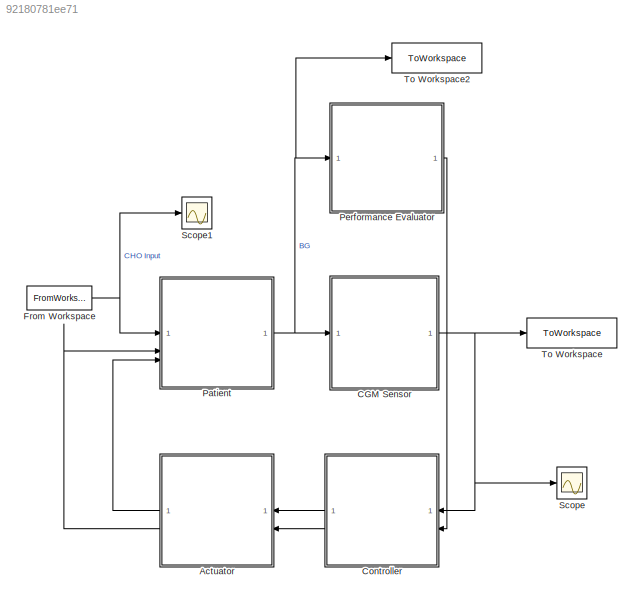
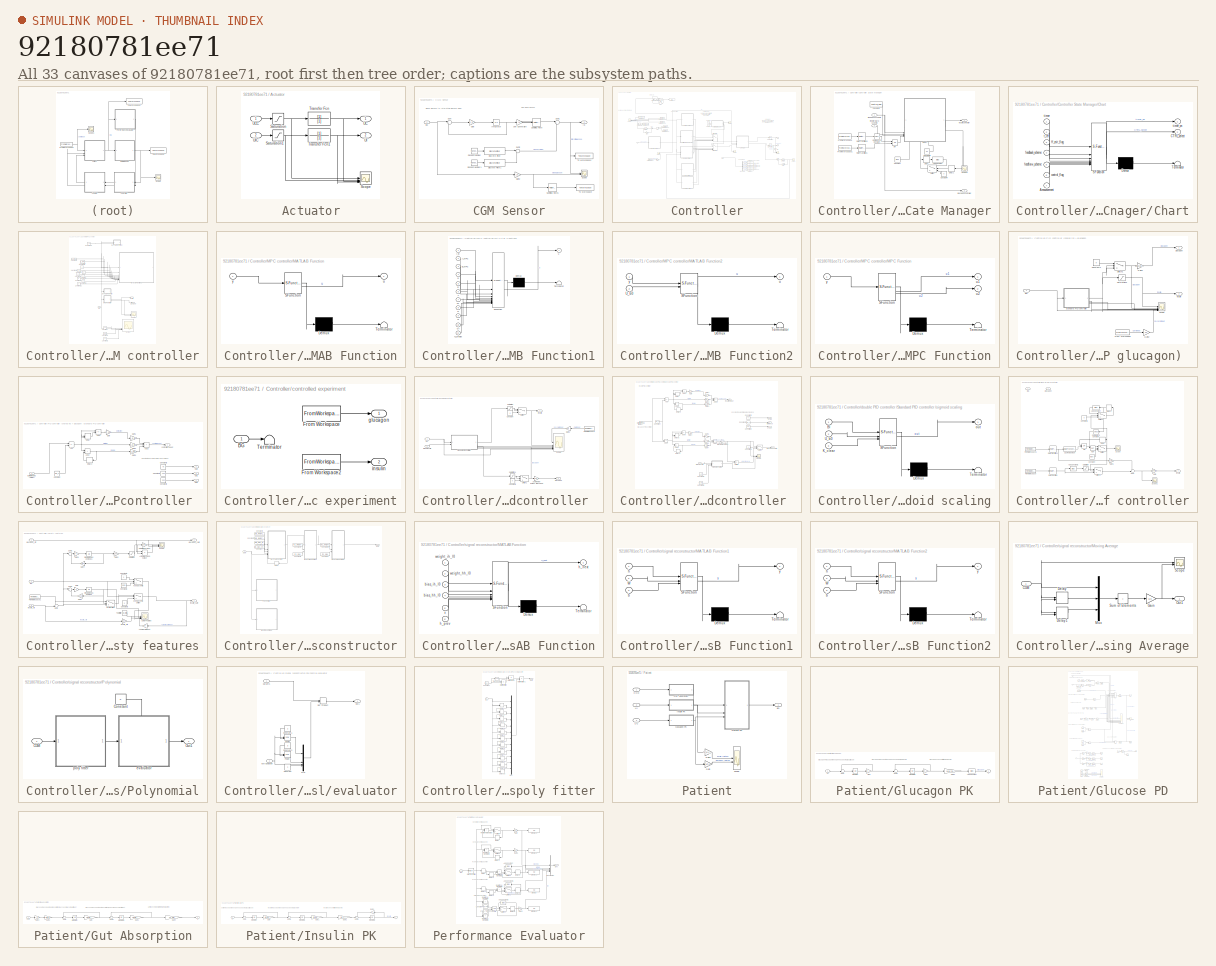
[diagram: thumbnail index - all 33 canvases of the model, root first then tree order]
MODEL slx_92180781ee71
KIND model
CONFIG AbsTol = auto
CONFIG EnableMultiTasking = off
CONFIG FixedStep = auto
CONFIG MaxStep = 1e-2
CONFIG MinStep = auto
CONFIG RelTol = 1e-3
CONFIG SampleTimeConstraint = Unconstrained
CONFIG SolverName = VariableStepAuto
CONFIG StartTime = 0.0
CONFIG StopTime = t_sim
BLOCK [SubSystem] Actuator
BLOCK [Saturate] Actuator/Saturation
  LowerLimit = 0
  UpperLimit = inf
BLOCK [Saturate] Actuator/Saturation1
  LowerLimit = 0
  UpperLimit = 60000
BLOCK [Scope] Actuator/Scope
  Floating = off
  NumInputPorts = 4
  ScopeSpecificationString = Simulink.scopes.TimeScopeBlockCfg('CurrentConfiguration', extmgr.ConfigurationSet(extmgr.Configuration('Core','General UI',true),extmgr.Configuration('Core','Source UI',true),extmgr.Configuration('Sources','WiredSimulink',true,'DataLoggingVariableName','ScopeData1'),extmgr.Configuration('Visuals','Time Domain',true,'SerializedDisplays',{struct('MinYLimReal','-2089.91313','MaxYLimReal','18809.21816...<+1504ch>
BLOCK [TransferFcn] Actuator/Transfer Fcn
  Denominator = [1]
BLOCK [TransferFcn] Actuator/Transfer Fcn1
  Denominator = [1]
BLOCK [Outport] Actuator/UC
BLOCK [Inport] Actuator/UCC
BLOCK [Outport] Actuator/UI
  Port = 2
BLOCK [Inport] Actuator/UIC
  Port = 2
BLOCK [SubSystem] CGM Sensor
BLOCK [Inport] CGM Sensor/BG
BLOCK [DiscreteFilter] CGM Sensor/Discrete Filter
  Denominator = [1 -1.23 0.3995]
  InputPortMap = u0
BLOCK [DiscreteFilter] CGM Sensor/Discrete Filter1
  Denominator = [1 -1.013 0.2135]
  InputPortMap = u0
BLOCK [Gain] CGM Sensor/Gain
  Gain = k_bi
BLOCK [Gain] CGM Sensor/Gain2
  Gain = 18
BLOCK [Outport] CGM Sensor/IG
BLOCK [Integrator] CGM Sensor/Integrator
  InitialCondition = BG_0/18
BLOCK [RandomNumber] CGM Sensor/Random Number
  SampleTime = T_CGM
  Seed = randi(1e5)
  Variance = 11.3
BLOCK [RandomNumber] CGM Sensor/Random Number1
  SampleTime = T_CGM
  Seed = randi(1e5)
  Variance = 14.45
BLOCK [RateTransition] CGM Sensor/Sampling Rate
  InitialCondition = BG_0
  OutPortSampleTime = T_CGM
BLOCK [RateTransition] CGM Sensor/Sampling Rate1
  InitialCondition = BG_0
  OutPortSampleTime = T_CGM
BLOCK [Scope] CGM Sensor/Scope
  Floating = off
  NumInputPorts = 2
  ScopeSpecificationString = Simulink.scopes.TimeScopeBlockCfg('CurrentConfiguration', extmgr.ConfigurationSet(extmgr.Configuration('Core','General UI',true),extmgr.Configuration('Core','Source UI',true),extmgr.Configuration('Sources','WiredSimulink',true,'DataLoggingVariableName','ScopeData4'),extmgr.Configuration('Visuals','Time Domain',true,'SerializedDisplays',{struct('MinYLimReal','40.04914','MaxYLimReal','276.19061','YL...<+1443ch>
BLOCK [Sum] CGM Sensor/Sum
  Inputs = |+-
BLOCK [Sum] CGM Sensor/Sum1
  Inputs = |++
BLOCK [Sum] CGM Sensor/Sum2
  Inputs = |++
BLOCK [ToWorkspace] CGM Sensor/To Workspace
  FixptAsFi = on
  MaxDataPoints = inf
  SampleTime = -1
  SaveFormat = Timeseries
  VariableName = real_bg
BLOCK [ToWorkspace] CGM Sensor/To Workspace1
  FixptAsFi = on
  MaxDataPoints = inf
  SampleTime = -1
  SaveFormat = Timeseries
  VariableName = CGM
BLOCK [Gain] CGM Sensor/Unit Conversion
  Gain = 18
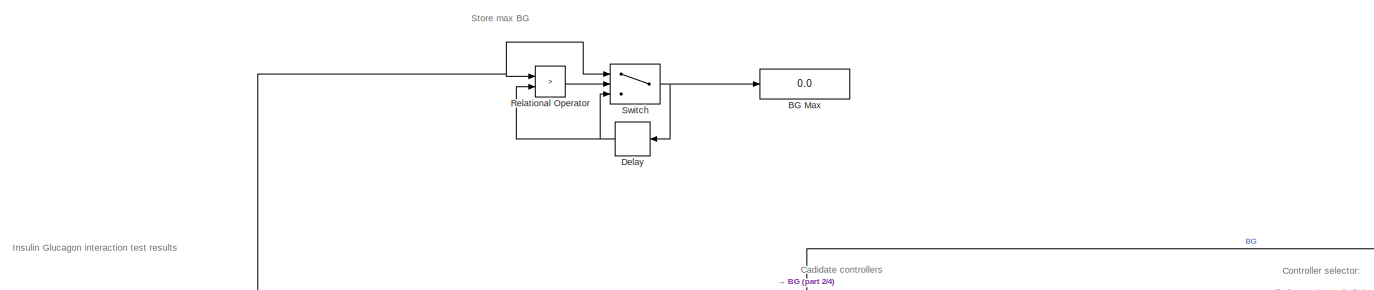
[diagram: Controller - part 1/4, top left region]
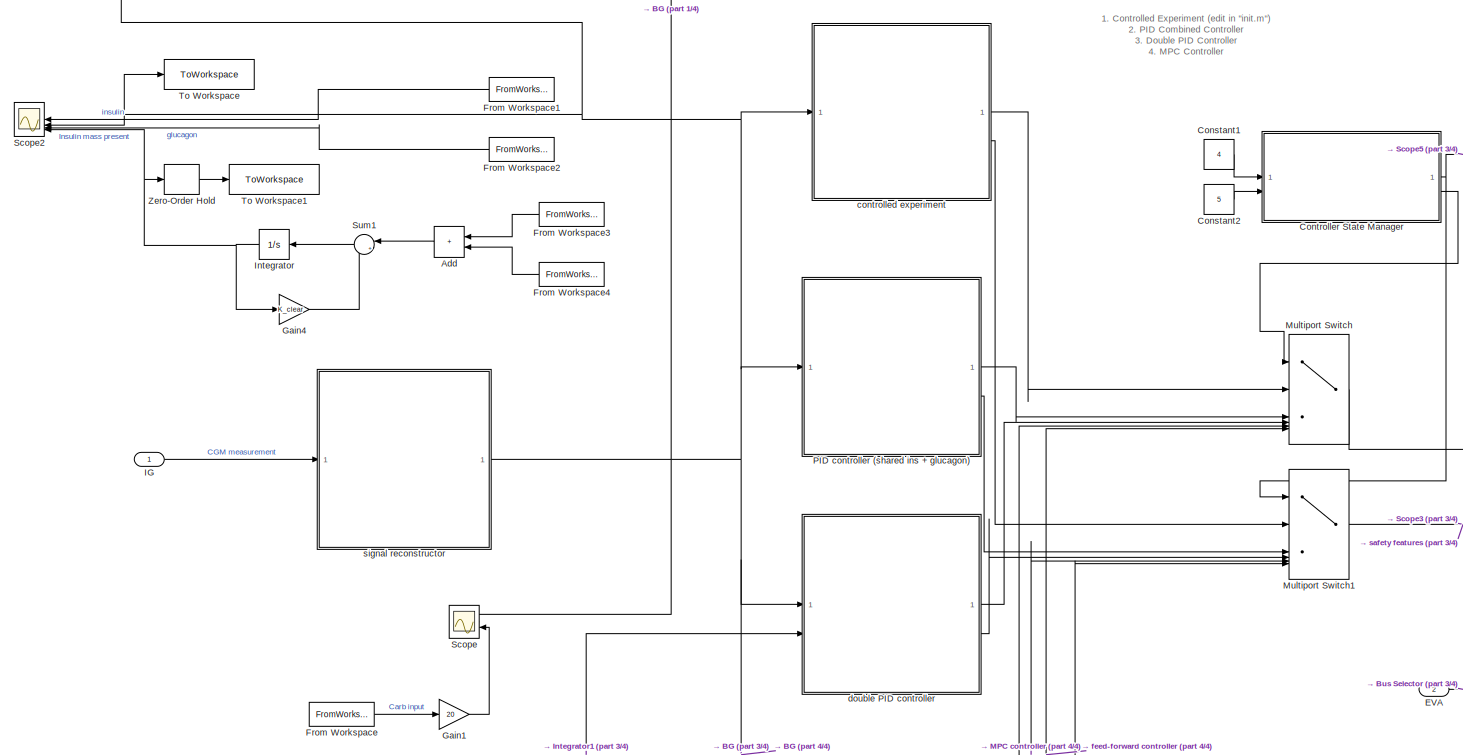
[diagram: Controller - part 2/4, middle left region]
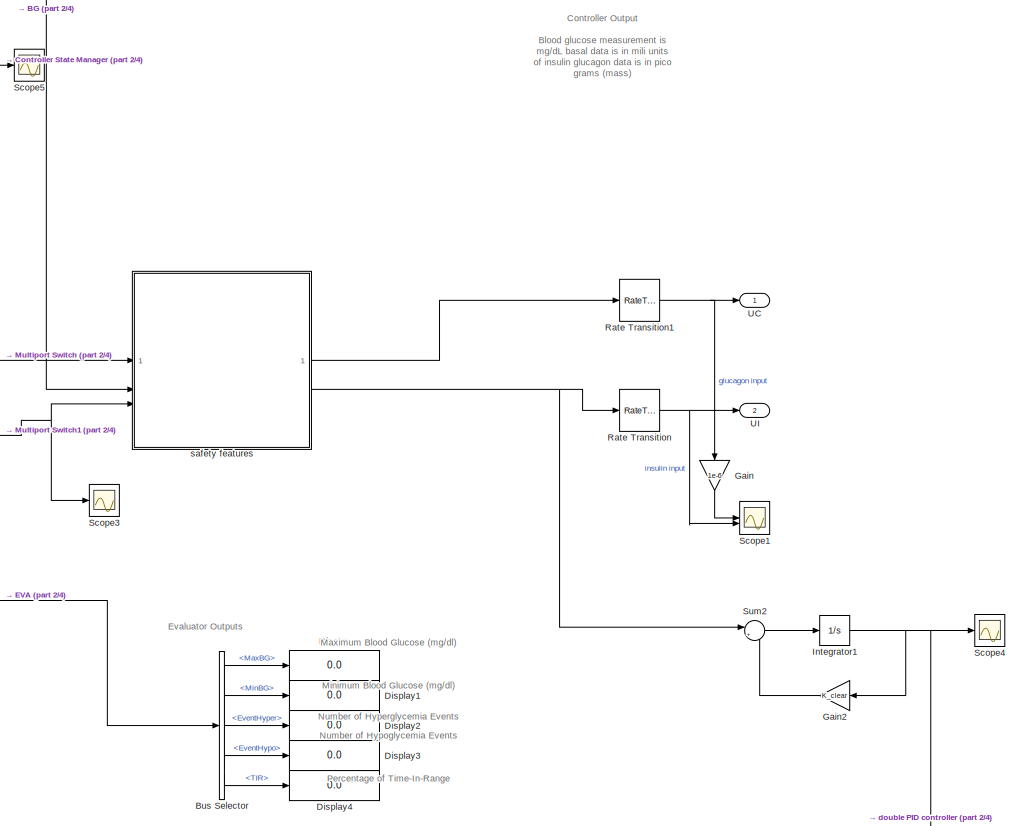
[diagram: Controller - part 3/4, middle right region]
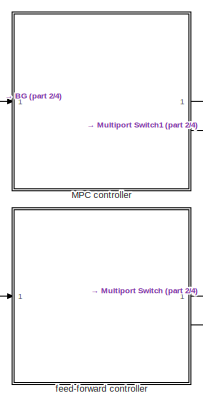
[diagram: Controller - part 4/4, bottom center region]
BLOCK [SubSystem] Controller
BLOCK [Sum] Controller/Add
  IconShape = rectangular
BLOCK [Display] Controller/BG Max 
  Decimation = 1
BLOCK [BusSelector] Controller/Bus Selector
  OutputSignals = MaxBG,MinBG,EventHyper,EventHypo,TIR
BLOCK [Constant] Controller/Constant1
  Value = 4
BLOCK [Constant] Controller/Constant2
  Value = 5
BLOCK [SubSystem] Controller/Controller State Manager
BLOCK [Bias] Controller/Controller State Manager/Add Constant
  Bias = T_CTRL
  SaturateOnIntegerOverflow = off
BLOCK [SubSystem] Controller/Controller State Manager/Chart
  ErrorFcn = Stateflow.Translate.translate
  PermitHierarchicalResolution = ExplicitOnly
  PortSchema = {"entries":[{"content":{"sides":[{"content":{"connectorIds":["In6","In4","In5","In7"]},"type":"ConnectorPlacement.EquallySpacedRectSide","uuid":"e6899742-d930-4cdd-9e73-f4511c9292a8"},{"content":{"connectorIds":["Out2"],"side":"RIGHT"},"type":"ConnectorPlacement.EquallySpacedRectSide","uuid":"ec367191-0ded-4e49-940d-e1c38365304e"},{"content":{"side":"TOP"},"type":"ConnectorPlacement.EquallySpacedR...<+408ch>
  SFBlockType = Chart
  TreatAsAtomicUnit = on
BLOCK [Demux] Controller/Controller State Manager/Chart/ Demux 
  Outputs = 1
BLOCK [S-Function] Controller/Controller State Manager/Chart/ SFunction 
  EnableBusSupport = on
  FunctionName = sf_sfun
  PortCounts = [7 3]
  SFcnIsStateOwnerBlock = off
  SFunctionDeploymentMode = off
  Tag = Stateflow S-Function 5
BLOCK [Terminator] Controller/Controller State Manager/Chart/ Terminator 
BLOCK [Inport] Controller/Controller State Manager/Chart/Announcement
  Port = 7
BLOCK [Outport] Controller/Controller State Manager/Chart/CTRL_select
  Port = 2
BLOCK [Inport] Controller/Controller State Manager/Chart/control_flag
  Port = 6
BLOCK [Inport] Controller/Controller State Manager/Chart/feedback_scheme
  Port = 4
BLOCK [Inport] Controller/Controller State Manager/Chart/feedforw_scheme
  Port = 5
BLOCK [Inport] Controller/Controller State Manager/Chart/ff_exit_flag
  Port = 3
BLOCK [Inport] Controller/Controller State Manager/Chart/t_ref
  Port = 2
BLOCK [Inport] Controller/Controller State Manager/Chart/timer
BLOCK [Outport] Controller/Controller State Manager/Chart/timer_on
BLOCK [Reference] Controller/Controller State Manager/Compare To Constant  REF=simulink/Logic and Bit
Operations/Compare
To Constant
  SourceBlock = simulink/Logic and Bit\nOperations/Compare\nTo Constant
  SourceType = Compare To Constant
BLOCK [Constant] Controller/Controller State Manager/Constant
  Value = false
BLOCK [Constant] Controller/Controller State Manager/Constant1
  Value = control_flag
BLOCK [Constant] Controller/Controller State Manager/Constant4
  Value = 0
BLOCK [Constant] Controller/Controller State Manager/Constant5
  Value = 90
BLOCK [Delay] Controller/Controller State Manager/Delay
  DelayLength = 1
  InputPortMap = u0
BLOCK [Delay] Controller/Controller State Manager/Delay1
  DelayLength = 1
  InputPortMap = u0
BLOCK [FromWorkspace] Controller/Controller State Manager/From Workspace
  VariableName = Announcements
BLOCK [FromWorkspace] Controller/Controller State Manager/From Workspace1
  VariableName = meal_prep
BLOCK [Logic] Controller/Controller State Manager/OR
  AllPortsSameDT = off
  IconShape = distinctive
  Operator = OR
  OutDataTypeStr = boolean
BLOCK [RateTransition] Controller/Controller State Manager/Rate Transition1
  OutPortSampleTime = T_CTRL
BLOCK [RateTransition] Controller/Controller State Manager/Rate Transition3
  OutPortSampleTime = T_CTRL
BLOCK [Scope] Controller/Controller State Manager/Scope3
  Floating = off
  NumInputPorts = 1
  ScopeSpecificationString = Simulink.scopes.TimeScopeBlockCfg('CurrentConfiguration', extmgr.ConfigurationSet(extmgr.Configuration('Core','General UI',true),extmgr.Configuration('Core','Source UI',true),extmgr.Configuration('Sources','WiredSimulink',true,'DataLoggingVariableName','ScopeData4'),extmgr.Configuration('Visuals','Time Domain',true,'SerializedDisplays',{struct('MinYLimReal','-0.125','MaxYLimReal','1.125','YLabelRe...<+1391ch>
BLOCK [Switch] Controller/Controller State Manager/Switch
  Criteria = u2 > Threshold
  InputSameDT = off
  SaturateOnIntegerOverflow = off
BLOCK [Inport] Controller/Controller State Manager/feedback scheme
BLOCK [Inport] Controller/Controller State Manager/feedforward scheme
  Port = 2
BLOCK [Outport] Controller/Controller State Manager/glucagon controller
  Port = 2
BLOCK [Outport] Controller/Controller State Manager/insulin controller
BLOCK [Delay] Controller/Delay
  DelayLength = 1
  InputPortMap = u0
BLOCK [Display] Controller/Display
  Decimation = 1
BLOCK [Display] Controller/Display1
  Decimation = 1
BLOCK [Display] Controller/Display2
  Decimation = 1
BLOCK [Display] Controller/Display3
  Decimation = 1
BLOCK [Display] Controller/Display4
  Decimation = 1
BLOCK [Inport] Controller/EVA
  Port = 2
BLOCK [FromWorkspace] Controller/From Workspace
  VariableName = CHO_data
BLOCK [FromWorkspace] Controller/From Workspace1
  NameLocation = top
  VariableName = bolus_data
BLOCK [FromWorkspace] Controller/From Workspace2
  NameLocation = top
  VariableName = glucagon_data
BLOCK [FromWorkspace] Controller/From Workspace3
  VariableName = bolus_data
BLOCK [FromWorkspace] Controller/From Workspace4
  VariableName = basal_data
BLOCK [Gain] Controller/Gain
  Gain = 1e-6
  NameLocation = left
BLOCK [Gain] Controller/Gain1
  Gain = 20
BLOCK [Gain] Controller/Gain2
  Gain = K_clear
BLOCK [Gain] Controller/Gain4
  Gain = K_clear
BLOCK [Inport] Controller/IG
BLOCK [Integrator] Controller/Integrator
  InitialCondition = U_b0/K_clear
BLOCK [Integrator] Controller/Integrator1
  InitialCondition = U_b0/K_clear
BLOCK [SubSystem] Controller/MPC controller
BLOCK [Inport] Controller/MPC controller/BG
BLOCK [Constant] Controller/MPC controller/Constant
  Value = 100
BLOCK [Constant] Controller/MPC controller/Constant1
  Value = 180
BLOCK [Constant] Controller/MPC controller/Constant10
  Commented = on
  Value = ur
BLOCK [Constant] Controller/MPC controller/Constant11
  Commented = on
  Value = Gr
BLOCK [Constant] Controller/MPC controller/Constant12
  Commented = on
  Value = N
BLOCK [Constant] Controller/MPC controller/Constant13
  Commented = on
  Value = U_b0
BLOCK [Constant] Controller/MPC controller/Constant2
  Value = 70
BLOCK [Constant] Controller/MPC controller/Constant3
  Commented = on
  Value = A_MPC
BLOCK [Constant] Controller/MPC controller/Constant4
  Commented = on
  Value = B_MPC
BLOCK [Constant] Controller/MPC controller/Constant5
  Commented = on
  Value = Q
BLOCK [Constant] Controller/MPC controller/Constant6
  Commented = on
  Value = R
BLOCK [Constant] Controller/MPC controller/Constant7
  Commented = on
  Value = c
BLOCK [Constant] Controller/MPC controller/Constant8
  Commented = on
  Value = x0
BLOCK [Constant] Controller/MPC controller/Constant9
  Commented = on
  Value = xr
BLOCK [SubSystem] Controller/MPC controller/MATLAB Function
  Commented = on
  ErrorFcn = Stateflow.Translate.translate
  PermitHierarchicalResolution = ExplicitOnly
  SFBlockType = MATLAB Function
  TreatAsAtomicUnit = on
BLOCK [Demux] Controller/MPC controller/MATLAB Function/ Demux 
  Outputs = 1
BLOCK [S-Function] Controller/MPC controller/MATLAB Function/ SFunction 
  EnableBusSupport = on
  FunctionName = sf_sfun
  PortCounts = [1 2]
  SFcnIsStateOwnerBlock = off
  SFunctionDeploymentMode = off
  Tag = Stateflow S-Function 7
BLOCK [Terminator] Controller/MPC controller/MATLAB Function/ Terminator 
BLOCK [Outport] Controller/MPC controller/MATLAB Function/u
BLOCK [Inport] Controller/MPC controller/MATLAB Function/y
BLOCK [SubSystem] Controller/MPC controller/MATLAB Function1
  Commented = on
  ErrorFcn = Stateflow.Translate.translate
  PermitHierarchicalResolution = ExplicitOnly
  SFBlockType = MATLAB Function
  TreatAsAtomicUnit = on
BLOCK [Demux] Controller/MPC controller/MATLAB Function1/ Demux 
  Outputs = 1
BLOCK [S-Function] Controller/MPC controller/MATLAB Function1/ SFunction 
  EnableBusSupport = on
  FunctionName = sf_sfun
  PortCounts = [11 2]
  SFcnIsStateOwnerBlock = off
  SFunctionDeploymentMode = off
  Tag = Stateflow S-Function 8
BLOCK [Terminator] Controller/MPC controller/MATLAB Function1/ Terminator 
BLOCK [Inport] Controller/MPC controller/MATLAB Function1/A_MPC
  Port = 2
BLOCK [Inport] Controller/MPC controller/MATLAB Function1/B_MPC
  Port = 3
BLOCK [Inport] Controller/MPC controller/MATLAB Function1/Gr
  Port = 10
BLOCK [Inport] Controller/MPC controller/MATLAB Function1/N_predict
  Port = 11
BLOCK [Inport] Controller/MPC controller/MATLAB Function1/Q
  Port = 4
BLOCK [Inport] Controller/MPC controller/MATLAB Function1/R
  Port = 5
BLOCK [Inport] Controller/MPC controller/MATLAB Function1/c
  Port = 6
BLOCK [Outport] Controller/MPC controller/MATLAB Function1/u
BLOCK [Inport] Controller/MPC controller/MATLAB Function1/ur
  Port = 9
BLOCK [Inport] Controller/MPC controller/MATLAB Function1/x0
  Port = 7
BLOCK [Inport] Controller/MPC controller/MATLAB Function1/xr
  Port = 8
BLOCK [Inport] Controller/MPC controller/MATLAB Function1/y_in
BLOCK [SubSystem] Controller/MPC controller/MATLAB Function2
  Commented = on
  ErrorFcn = Stateflow.Translate.translate
  PermitHierarchicalResolution = ExplicitOnly
  SFBlockType = MATLAB Function
  TreatAsAtomicUnit = on
BLOCK [Demux] Controller/MPC controller/MATLAB Function2/ Demux 
  Outputs = 1
BLOCK [S-Function] Controller/MPC controller/MATLAB Function2/ SFunction 
  EnableBusSupport = on
  FunctionName = sf_sfun
  PortCounts = [2 2]
  SFcnIsStateOwnerBlock = off
  SFunctionDeploymentMode = off
  Tag = Stateflow S-Function 9
BLOCK [Terminator] Controller/MPC controller/MATLAB Function2/ Terminator 
BLOCK [Inport] Controller/MPC controller/MATLAB Function2/U_b0
  Port = 2
BLOCK [Outport] Controller/MPC controller/MATLAB Function2/u
BLOCK [Inport] Controller/MPC controller/MATLAB Function2/y
BLOCK [SubSystem] Controller/MPC controller/MPC Function
  ErrorFcn = Stateflow.Translate.translate
  PermitHierarchicalResolution = ExplicitOnly
  SFBlockType = MATLAB Function
  TreatAsAtomicUnit = on
BLOCK [Demux] Controller/MPC controller/MPC Function/ Demux 
  Outputs = 1
BLOCK [S-Function] Controller/MPC controller/MPC Function/ SFunction 
  EnableBusSupport = on
  FunctionName = sf_sfun
  PortCounts = [1 3]
  SFcnIsStateOwnerBlock = off
  SFunctionDeploymentMode = off
  Tag = Stateflow S-Function 2
BLOCK [Terminator] Controller/MPC controller/MPC Function/ Terminator 
BLOCK [Outport] Controller/MPC controller/MPC Function/u1
BLOCK [Outport] Controller/MPC controller/MPC Function/u2
  Port = 2
BLOCK [Inport] Controller/MPC controller/MPC Function/y
BLOCK [Scope] Controller/MPC controller/Scope
  Floating = off
  NumInputPorts = 6
  ScopeSpecificationString = Simulink.scopes.TimeScopeBlockCfg('CurrentConfiguration', extmgr.ConfigurationSet(extmgr.Configuration('Core','General UI',true),extmgr.Configuration('Core','Source UI',true),extmgr.Configuration('Sources','WiredSimulink',true),extmgr.Configuration('Visuals','Time Domain',true,'SerializedDisplays',{struct('MinYLimReal','-32.16515','MaxYLimReal','289.48636','YLabelReal','','MinYLimMag','0.00000','M...<+1459ch>
BLOCK [Scope] Controller/MPC controller/Scope1
  Floating = off
  NumInputPorts = 2
  ScopeSpecificationString = Simulink.scopes.TimeScopeBlockCfg('CurrentConfiguration', extmgr.ConfigurationSet(extmgr.Configuration('Core','General UI',true),extmgr.Configuration('Core','Source UI',true),extmgr.Configuration('Sources','WiredSimulink',true),extmgr.Configuration('Visuals','Time Domain',true,'SerializedDisplays',{struct('MinYLimReal','-1.00000','MaxYLimReal','1.00000','YLabelReal','','MinYLimMag','0.00000','MaxY...<+1408ch>
BLOCK [Outport] Controller/MPC controller/glucagon
  NameLocation = top
BLOCK [Outport] Controller/MPC controller/insulin
  Port = 2
BLOCK [MultiPortSwitch] Controller/Multiport Switch
  InputSameDT = off
  Inputs = 5
  SaturateOnIntegerOverflow = off
BLOCK [MultiPortSwitch] Controller/Multiport Switch1
  InputSameDT = off
  Inputs = 5
  SaturateOnIntegerOverflow = off
BLOCK [SubSystem] Controller/PID controller (shared ins + glucagon) 
BLOCK [Inport] Controller/PID controller (shared ins + glucagon) /BG
BLOCK [Constant] Controller/PID controller (shared ins + glucagon) /Constant2
  Value = 0
BLOCK [FromWorkspace] Controller/PID controller (shared ins + glucagon) /From Workspace
  VariableName = CHO_data
BLOCK [Gain] Controller/PID controller (shared ins + glucagon) /Gain1
  Gain = -glucagon_dose
BLOCK [Gain] Controller/PID controller (shared ins + glucagon) /Gain2
  Gain = 20
BLOCK [Saturate] Controller/PID controller (shared ins + glucagon) /Saturation1
  LowerLimit = 0
  UpperLimit = inf
BLOCK [Scope] Controller/PID controller (shared ins + glucagon) /Scope
  Floating = off
  NumInputPorts = 9
  ScopeSpecificationString = Simulink.scopes.TimeScopeBlockCfg('CurrentConfiguration', extmgr.ConfigurationSet(extmgr.Configuration('Core','General UI',true),extmgr.Configuration('Core','Source UI',true),extmgr.Configuration('Sources','WiredSimulink',true,'DataLoggingVariableName','ScopeData1'),extmgr.Configuration('Visuals','Time Domain',true,'SerializedDisplays',{struct('MinYLimReal','-100','MaxYLimReal','400','YLabelReal',...<+1821ch>
BLOCK [SubSystem] Controller/PID controller (shared ins + glucagon) /Standard PID controller 
BLOCK [Sum] Controller/PID controller (shared ins + glucagon) /Standard PID controller /Add
  IconShape = rectangular
  Inputs = +-
BLOCK [Sum] Controller/PID controller (shared ins + glucagon) /Standard PID controller /Add1
  IconShape = rectangular
  Inputs = +-
BLOCK [Sum] Controller/PID controller (shared ins + glucagon) /Standard PID controller /Add2
  IconShape = rectangular
BLOCK [Sum] Controller/PID controller (shared ins + glucagon) /Standard PID controller /Add3
  IconShape = rectangular
  Inputs = +++
BLOCK [Constant] Controller/PID controller (shared ins + glucagon) /Standard PID controller /Constant
  Value = BG_0
BLOCK [Constant] Controller/PID controller (shared ins + glucagon) /Standard PID controller /Constant1
  Value = 100
BLOCK [Constant] Controller/PID controller (shared ins + glucagon) /Standard PID controller /Constant2
  Value = 250
BLOCK [Constant] Controller/PID controller (shared ins + glucagon) /Standard PID controller /Constant3
  Value = 70
BLOCK [Delay] Controller/PID controller (shared ins + glucagon) /Standard PID controller /Delay
  DelayLength = 1
  InitialConditionSource = Input port
  InputPortMap = u0,p4
BLOCK [Delay] Controller/PID controller (shared ins + glucagon) /Standard PID controller /Delay1
  DelayLength = 1
  InputPortMap = u0
  NameLocation = top
BLOCK [Inport] Controller/PID controller (shared ins + glucagon) /Standard PID controller /Estimated BG (mg//dL)
BLOCK [Gain] Controller/PID controller (shared ins + glucagon) /Standard PID controller /Gain
  Gain = 1/T_CGM
BLOCK [Gain] Controller/PID controller (shared ins + glucagon) /Standard PID controller /Gain1
  Gain = K_d_ins
BLOCK [Gain] Controller/PID controller (shared ins + glucagon) /Standard PID controller /Gain2
  Gain = K_p_ins
BLOCK [Gain] Controller/PID controller (shared ins + glucagon) /Standard PID controller /Gain3
  Gain = K_i_ins
BLOCK [Outport] Controller/PID controller (shared ins + glucagon) /Standard PID controller /Out1
  Port = 3
BLOCK [Outport] Controller/PID controller (shared ins + glucagon) /Standard PID controller /Out2
  Port = 2
BLOCK [Outport] Controller/PID controller (shared ins + glucagon) /Standard PID controller /Out4
  Port = 4
BLOCK [Outport] Controller/PID controller (shared ins + glucagon) /Standard PID controller /controller ouput
BLOCK [Switch] Controller/PID controller (shared ins + glucagon) /Switch1
  Criteria = u2 > Threshold
  InputSameDT = off
  SaturateOnIntegerOverflow = off
  Threshold = -16
BLOCK [Outport] Controller/PID controller (shared ins + glucagon) /glucagon
BLOCK [Outport] Controller/PID controller (shared ins + glucagon) /insulin
  Port = 2
BLOCK [RateTransition] Controller/Rate Transition
  OutPortSampleTime = T_CTRL
BLOCK [RateTransition] Controller/Rate Transition1
  OutPortSampleTime = T_CTRL
BLOCK [RelationalOperator] Controller/Relational Operator
  InputSameDT = off
  Operator = >
  OutDataTypeStr = boolean
  RndMeth = Simplest
BLOCK [Scope] Controller/Scope
  Floating = off
  NumInputPorts = 2
  ScopeSpecificationString = Simulink.scopes.TimeScopeBlockCfg('CurrentConfiguration', extmgr.ConfigurationSet(extmgr.Configuration('Core','General UI',true),extmgr.Configuration('Core','Source UI',true),extmgr.Configuration('Sources','WiredSimulink',true,'DataLoggingVariableName','ScopeData1'),extmgr.Configuration('Visuals','Time Domain',true,'SerializedDisplays',{struct('MinYLimReal','-61.39498','MaxYLimReal','552.55479','Y...<+1476ch>
BLOCK [Scope] Controller/Scope1
  Floating = off
  NumInputPorts = 2
  ScopeSpecificationString = Simulink.scopes.TimeScopeBlockCfg('CurrentConfiguration', extmgr.ConfigurationSet(extmgr.Configuration('Core','General UI',true),extmgr.Configuration('Core','Source UI',true),extmgr.Configuration('Sources','WiredSimulink',true,'DataLoggingVariableName','ScopeData1'),extmgr.Configuration('Visuals','Time Domain',true,'SerializedDisplays',{struct('MinYLimReal','-26.35412','MaxYLimReal','795.49729','Y...<+1474ch>
BLOCK [Scope] Controller/Scope2
  Floating = off
  NumInputPorts = 4
  ScopeSpecificationString = Simulink.scopes.TimeScopeBlockCfg('CurrentConfiguration', extmgr.ConfigurationSet(extmgr.Configuration('Core','General UI',true),extmgr.Configuration('Core','Source UI',true),extmgr.Configuration('Sources','WiredSimulink',true,'DataLoggingVariableName','ScopeData1'),extmgr.Configuration('Visuals','Time Domain',true,'SerializedDisplays',{struct('MinYLimReal','-184.25874','MaxYLimReal','1658.32864',...<+1948ch>
BLOCK [Scope] Controller/Scope3
  Floating = off
  NumInputPorts = 1
  ScopeSpecificationString = Simulink.scopes.TimeScopeBlockCfg('CurrentConfiguration', extmgr.ConfigurationSet(extmgr.Configuration('Core','General UI',true),extmgr.Configuration('Core','Source UI',true),extmgr.Configuration('Sources','WiredSimulink',true,'DataLoggingVariableName','ScopeData1'),extmgr.Configuration('Visuals','Time Domain',true,'SerializedDisplays',{struct('MinYLimReal','-148.98081','MaxYLimReal','1982.26161',...<+1506ch>
BLOCK [Scope] Controller/Scope4
  Floating = off
  NumInputPorts = 1
  ScopeSpecificationString = Simulink.scopes.TimeScopeBlockCfg('CurrentConfiguration', extmgr.ConfigurationSet(extmgr.Configuration('Core','General UI',true),extmgr.Configuration('Core','Source UI',true),extmgr.Configuration('Sources','WiredSimulink',true,'DataLoggingVariableName','ScopeData2'),extmgr.Configuration('Visuals','Time Domain',true,'SerializedDisplays',{struct('MinYLimReal','-384.80585','MaxYLimReal','8054.32602',...<+1420ch>
BLOCK [Scope] Controller/Scope5
  Floating = off
  NumInputPorts = 1
  ScopeSpecificationString = Simulink.scopes.TimeScopeBlockCfg('CurrentConfiguration', extmgr.ConfigurationSet(extmgr.Configuration('Core','General UI',true),extmgr.Configuration('Core','Source UI',true),extmgr.Configuration('Sources','WiredSimulink',true,'DataLoggingVariableName','ScopeData2'),extmgr.Configuration('Visuals','Time Domain',true,'SerializedDisplays',{struct('MinYLimReal','0.5','MaxYLimReal','5.5','YLabelReal','...<+1413ch>
BLOCK [Sum] Controller/Sum1
  Inputs = |+-
BLOCK [Sum] Controller/Sum2
  Inputs = |+-
BLOCK [Switch] Controller/Switch
  Criteria = u2 ~= 0
  InputSameDT = off
  SaturateOnIntegerOverflow = off
BLOCK [ToWorkspace] Controller/To Workspace
  FixptAsFi = on
  MaxDataPoints = inf
  SampleTime = -1
  VariableName = BG_data
BLOCK [ToWorkspace] Controller/To Workspace1
  FixptAsFi = on
  MaxDataPoints = inf
  SampleTime = -1
  VariableName = total_insulin
BLOCK [Outport] Controller/UC
BLOCK [Outport] Controller/UI
  Port = 2
BLOCK [ZeroOrderHold] Controller/Zero-Order Hold
  SampleTime = T_CGM
BLOCK [SubSystem] Controller/controlled experiment
BLOCK [Inport] Controller/controlled experiment/BG
BLOCK [FromWorkspace] Controller/controlled experiment/From Workspace
  VariableName = glucagon_data
BLOCK [FromWorkspace] Controller/controlled experiment/From Workspace2
  VariableName = bolus_data
BLOCK [Terminator] Controller/controlled experiment/Terminator
BLOCK [Outport] Controller/controlled experiment/glucagon
BLOCK [Outport] Controller/controlled experiment/insulin
  Port = 2
BLOCK [SubSystem] Controller/double PID controller 
BLOCK [Inport] Controller/double PID controller /BG
BLOCK [Inport] Controller/double PID controller /Blood Insulin
  Port = 2
BLOCK [Constant] Controller/double PID controller /Constant
  Value = 0
BLOCK [Constant] Controller/double PID controller /Constant1
  Value = 0
BLOCK [FromWorkspace] Controller/double PID controller /From Workspace
  VariableName = CHO_data
BLOCK [Gain] Controller/double PID controller /Gain2
  Gain = 20
BLOCK [Saturate] Controller/double PID controller /Saturation
  LowerLimit = 0
  UpperLimit = inf
BLOCK [Saturate] Controller/double PID controller /Saturation1
  LowerLimit = 0
  UpperLimit = inf
BLOCK [Scope] Controller/double PID controller /Scope
  Floating = off
  NumInputPorts = 7
  ScopeSpecificationString = Simulink.scopes.TimeScopeBlockCfg('CurrentConfiguration', extmgr.ConfigurationSet(extmgr.Configuration('Core','General UI',true),extmgr.Configuration('Core','Source UI',true),extmgr.Configuration('Sources','WiredSimulink',true,'DataLoggingVariableName','ScopeData1'),extmgr.Configuration('Visuals','Time Domain',true,'SerializedDisplays',{struct('MinYLimReal','-36.95895','MaxYLimReal','332.63059','Y...<+1757ch>
BLOCK [SubSystem] Controller/double PID controller /Standard PID controller 
BLOCK [Sum] Controller/double PID controller /Standard PID controller /Add
  IconShape = rectangular
  Inputs = +-
BLOCK [Sum] Controller/double PID controller /Standard PID controller /Add1
  IconShape = rectangular
  Inputs = +-
BLOCK [Sum] Controller/double PID controller /Standard PID controller /Add2
  IconShape = rectangular
BLOCK [Sum] Controller/double PID controller /Standard PID controller /Add3
  IconShape = rectangular
  Inputs = +++
BLOCK [Sum] Controller/double PID controller /Standard PID controller /Add4
  IconShape = rectangular
  Inputs = -+
BLOCK [Sum] Controller/double PID controller /Standard PID controller /Add5
  IconShape = rectangular
  Inputs = +-
BLOCK [Sum] Controller/double PID controller /Standard PID controller /Add6
  IconShape = rectangular
BLOCK [Sum] Controller/double PID controller /Standard PID controller /Add7
  IconShape = rectangular
  Inputs = +++
BLOCK [Inport] Controller/double PID controller /Standard PID controller /Blood Insulin
  Port = 2
BLOCK [Constant] Controller/double PID controller /Standard PID controller /Constant
  Value = BG_0
BLOCK [Constant] Controller/double PID controller /Standard PID controller /Constant1
  Value = BG_0
BLOCK [Constant] Controller/double PID controller /Standard PID controller /Constant2
  Value = 250
BLOCK [Constant] Controller/double PID controller /Standard PID controller /Constant3
  Value = 70
BLOCK [Constant] Controller/double PID controller /Standard PID controller /Constant4
  Value = -1
BLOCK [Constant] Controller/double PID controller /Standard PID controller /Constant5
  Value = K_clear
BLOCK [Constant] Controller/double PID controller /Standard PID controller /Constant6
  Value = U_b0
BLOCK [Delay] Controller/double PID controller /Standard PID controller /Delay
  DelayLength = 1
  InitialConditionSource = Input port
  InputPortMap = u0,p4
BLOCK [Delay] Controller/double PID controller /Standard PID controller /Delay1
  DelayLength = 1
  InputPortMap = u0
  NameLocation = top
BLOCK [Delay] Controller/double PID controller /Standard PID controller /Delay2
  DelayLength = 1
  InitialConditionSource = Input port
  InputPortMap = u0,p4
BLOCK [Delay] Controller/double PID controller /Standard PID controller /Delay3
  DelayLength = 1
  InputPortMap = u0
  NameLocation = top
BLOCK [Inport] Controller/double PID controller /Standard PID controller /Estimated BG (mg//dL)
BLOCK [Gain] Controller/double PID controller /Standard PID controller /Gain
  Gain = 1/T_CGM
BLOCK [Gain] Controller/double PID controller /Standard PID controller /Gain1
  Gain = K_d_ins
BLOCK [Gain] Controller/double PID controller /Standard PID controller /Gain2
  Gain = K_p_ins
BLOCK [Gain] Controller/double PID controller /Standard PID controller /Gain3
  Gain = K_i_ins
BLOCK [Gain] Controller/double PID controller /Standard PID controller /Gain4
  Gain = 1/T_CGM
BLOCK [Gain] Controller/double PID controller /Standard PID controller /Gain5
  Gain = K_d_glu
BLOCK [Gain] Controller/double PID controller /Standard PID controller /Gain6
  Gain = K_p_glu
BLOCK [Gain] Controller/double PID controller /Standard PID controller /Gain7
  Gain = K_i_glu
BLOCK [Scope] Controller/double PID controller /Standard PID controller /Scope
  Floating = off
  NumInputPorts = 3
  ScopeSpecificationString = Simulink.scopes.TimeScopeBlockCfg('CurrentConfiguration', extmgr.ConfigurationSet(extmgr.Configuration('Core','General UI',true),extmgr.Configuration('Core','Source UI',true),extmgr.Configuration('Sources','WiredSimulink',true,'DataLoggingVariableName','ScopeData1'),extmgr.Configuration('Visuals','Time Domain',true,'SerializedDisplays',{struct('MinYLimReal','-2.38376','MaxYLimReal','3.33998','YLab...<+1574ch>
BLOCK [Switch] Controller/double PID controller /Standard PID controller /Switch
  Criteria = u2 > Threshold
  InputSameDT = off
  SaturateOnIntegerOverflow = off
BLOCK [Outport] Controller/double PID controller /Standard PID controller /glucagon output
  Port = 5
BLOCK [Outport] Controller/double PID controller /Standard PID controller /hyper
  Port = 4
BLOCK [Outport] Controller/double PID controller /Standard PID controller /hypo
  Port = 2
BLOCK [Outport] Controller/double PID controller /Standard PID controller /insulin ouput
BLOCK [Product] Controller/double PID controller /Standard PID controller /multiply
  Inputs = **
BLOCK [Outport] Controller/double PID controller /Standard PID controller /reference
  Port = 3
BLOCK [SubSystem] Controller/double PID controller /Standard PID controller /sigmoid scaling
  ErrorFcn = Stateflow.Translate.translate
  PermitHierarchicalResolution = ExplicitOnly
  SFBlockType = MATLAB Function
  TreatAsAtomicUnit = on
BLOCK [Demux] Controller/double PID controller /Standard PID controller /sigmoid scaling/ Demux 
  Outputs = 1
BLOCK [S-Function] Controller/double PID controller /Standard PID controller /sigmoid scaling/ SFunction 
  EnableBusSupport = on
  FunctionName = sf_sfun
  PortCounts = [3 2]
  SFcnIsStateOwnerBlock = off
  SFunctionDeploymentMode = off
  Tag = Stateflow S-Function 6
BLOCK [Terminator] Controller/double PID controller /Standard PID controller /sigmoid scaling/ Terminator 
BLOCK [Inport] Controller/double PID controller /Standard PID controller /sigmoid scaling/BI
BLOCK [Inport] Controller/double PID controller /Standard PID controller /sigmoid scaling/K_clear
  Port = 3
BLOCK [Inport] Controller/double PID controller /Standard PID controller /sigmoid scaling/U_b0
  Port = 2
BLOCK [Outport] Controller/double PID controller /Standard PID controller /sigmoid scaling/out
  VectorParamsAs1DForOutWhenUnconnected = off
BLOCK [Gain] Controller/double PID controller /Standard PID controller /so that -ve output injects glucagon
  Gain = -1
  NameLocation = top
BLOCK [Switch] Controller/double PID controller /Switch
  Criteria = u2 > Threshold
  InputSameDT = off
  SaturateOnIntegerOverflow = off
BLOCK [Switch] Controller/double PID controller /Switch1
  Criteria = u2 > Threshold
  InputSameDT = off
  SaturateOnIntegerOverflow = off
BLOCK [Gain] Controller/double PID controller /due to lower potency of glucagon
  Gain = 1e5
BLOCK [Outport] Controller/double PID controller /glucagon
BLOCK [Outport] Controller/double PID controller /insulin
  Port = 2
BLOCK [SubSystem] Controller/feed-forward controller
BLOCK [Bias] Controller/feed-forward controller/Add Constant
  Bias = T_CTRL
  SaturateOnIntegerOverflow = off
BLOCK [Bias] Controller/feed-forward controller/Add Constant1
  Bias = -m_prep
  SaturateOnIntegerOverflow = off
BLOCK [Inport] Controller/feed-forward controller/BG
BLOCK [DataTypeConversion] Controller/feed-forward controller/Cast To Boolean
  OutDataTypeStr = boolean
  RndMeth = Floor
  SaturateOnIntegerOverflow = off
BLOCK [Reference] Controller/feed-forward controller/Compare To Constant  REF=simulink/Logic and Bit
Operations/Compare
To Constant
  SourceBlock = simulink/Logic and Bit\nOperations/Compare\nTo Constant
  SourceType = Compare To Constant
BLOCK [Constant] Controller/feed-forward controller/Constant
  Value = false
BLOCK [Constant] Controller/feed-forward controller/Constant1
  Value = 0
BLOCK [Delay] Controller/feed-forward controller/Delay
  DelayLength = 1
  InputPortMap = u0
BLOCK [Delay] Controller/feed-forward controller/Delay1
  DelayLength = 1
  InputPortMap = u0
BLOCK [FromWorkspace] Controller/feed-forward controller/From Workspace
  VariableName = Announcements
BLOCK [FromWorkspace] Controller/feed-forward controller/From Workspace1
  VariableName = meal_prep
BLOCK [Gain] Controller/feed-forward controller/Gain
  Gain = 1000/ICR/T_CTRL
BLOCK [Gain] Controller/feed-forward controller/Gain1
  Gain = m_prep
BLOCK [Logic] Controller/feed-forward controller/NOT
  AllPortsSameDT = off
  IconShape = distinctive
  Operator = NOT
  OutDataTypeStr = boolean
BLOCK [Logic] Controller/feed-forward controller/OR
  AllPortsSameDT = off
  IconShape = distinctive
  Operator = OR
  OutDataTypeStr = boolean
BLOCK [RateTransition] Controller/feed-forward controller/Rate Transition
  OutPortSampleTime = T_CTRL
BLOCK [RateTransition] Controller/feed-forward controller/Rate Transition1
  OutPortSampleTime = T_CTRL
BLOCK [Saturate] Controller/feed-forward controller/Saturation
  LowerLimit = 0
  UpperLimit = 1e3
BLOCK [Scope] Controller/feed-forward controller/Scope
  Floating = off
  NumInputPorts = 1
  ScopeSpecificationString = Simulink.scopes.TimeScopeBlockCfg('CurrentConfiguration', extmgr.ConfigurationSet(extmgr.Configuration('Core','General UI',true),extmgr.Configuration('Core','Source UI',true),extmgr.Configuration('Sources','WiredSimulink',true,'DataLoggingVariableName','ScopeData1'),extmgr.Configuration('Visuals','Time Domain',true,'SerializedDisplays',{struct('MinYLimReal','-0.125','MaxYLimReal','1.125','YLabelRe...<+1353ch>
BLOCK [Scope] Controller/feed-forward controller/Scope1
  Floating = off
  NumInputPorts = 1
  ScopeSpecificationString = Simulink.scopes.TimeScopeBlockCfg('CurrentConfiguration', extmgr.ConfigurationSet(extmgr.Configuration('Core','General UI',true),extmgr.Configuration('Core','Source UI',true),extmgr.Configuration('Sources','WiredSimulink',true,'DataLoggingVariableName','ScopeData1'),extmgr.Configuration('Visuals','Time Domain',true,'SerializedDisplays',{struct('MinYLimReal','-1.56675','MaxYLimReal','60.1664','YLab...<+1406ch>
BLOCK [Sum] Controller/feed-forward controller/Sum
  Inputs = ++|
BLOCK [Switch] Controller/feed-forward controller/Switch
  Criteria = u2 > Threshold
  InputSameDT = off
  SaturateOnIntegerOverflow = off
BLOCK [Switch] Controller/feed-forward controller/Switch1
  Criteria = u2 > Threshold
  InputSameDT = off
  SaturateOnIntegerOverflow = off
BLOCK [Switch] Controller/feed-forward controller/Switch2
  Criteria = u2 > Threshold
  InputSameDT = off
  SaturateOnIntegerOverflow = off
BLOCK [Outport] Controller/feed-forward controller/glucagon
  NameLocation = top
BLOCK [Outport] Controller/feed-forward controller/insulin
  Port = 2
BLOCK [SubSystem] Controller/safety features
BLOCK [Gain] Controller/safety features/Actual Insulin Input
  Gain = 50
BLOCK [Product] Controller/safety features/Actual glucagon output
  Inputs = **
BLOCK [Inport] Controller/safety features/BG
  Port = 2
BLOCK [Constant] Controller/safety features/Constant1
  Value = 50*50
BLOCK [Constant] Controller/safety features/Constant2
  Value = 0
BLOCK [Constant] Controller/safety features/Constant3
  Value = 0
BLOCK [FromWorkspace] Controller/safety features/From Workspace1
  VariableName = basal_data
BLOCK [Gain] Controller/safety features/Gain
BLOCK [Gain] Controller/safety features/Gain1
  Gain = 0.005
BLOCK [Gain] Controller/safety features/Gain2
  Gain = 2e-4
BLOCK [Gain] Controller/safety features/Gain3
BLOCK [Gain] Controller/safety features/Gain4
  Gain = 1/60
BLOCK [Switch] Controller/safety features/Hypoglycemia
  Criteria = u2 > Threshold
  InputSameDT = off
  SaturateOnIntegerOverflow = off
  Threshold = 70
BLOCK [Switch] Controller/safety features/Hypoglycemic Switch
  Criteria = u2 > Threshold
  InputSameDT = off
  SaturateOnIntegerOverflow = off
  Threshold = 70
BLOCK [Switch] Controller/safety features/Insulin switch
  Criteria = u2 > Threshold
  InputSameDT = off
  SaturateOnIntegerOverflow = off
  Threshold = TDD_limit/3
BLOCK [Integrator] Controller/safety features/Integral of bolus and leak
BLOCK [Integrator] Controller/safety features/Integral of bolus and leak1
BLOCK [Scope] Controller/safety features/Safety Features
  Floating = off
  NumInputPorts = 5
  ScopeSpecificationString = Simulink.scopes.TimeScopeBlockCfg('CurrentConfiguration', extmgr.ConfigurationSet(extmgr.Configuration('Core','General UI',true),extmgr.Configuration('Core','Source UI',true),extmgr.Configuration('Sources','WiredSimulink',true,'DataLoggingVariableName','ScopeData1'),extmgr.Configuration('Visuals','Time Domain',true,'SerializedDisplays',{struct('MinYLimReal','-2241.13611','MaxYLimReal','20170.22497...<+1717ch>
BLOCK [Saturate] Controller/safety features/Saturation
  LowerLimit = 0
  UpperLimit = 1
BLOCK [Gain] Controller/safety features/Saturation (scaled)
  Gain = 1e8
BLOCK [Scope] Controller/safety features/Scope
  Floating = off
  NumInputPorts = 3
  ScopeSpecificationString = Simulink.scopes.TimeScopeBlockCfg('CurrentConfiguration', extmgr.ConfigurationSet(extmgr.Configuration('Core','General UI',true),extmgr.Configuration('Core','Source UI',true),extmgr.Configuration('Sources','WiredSimulink',true,'DataLoggingVariableName','ScopeData1'),extmgr.Configuration('Visuals','Time Domain',true,'SerializedDisplays',{struct('MinYLimReal','-78557830.67175','MaxYLimReal','7070204...<+1502ch>
BLOCK [Sum] Controller/safety features/Sum
  Inputs = ++|
BLOCK [Sum] Controller/safety features/Sum1
  Inputs = |+-
BLOCK [Sum] Controller/safety features/Sum2
  Inputs = |+-
BLOCK [Constant] Controller/safety features/TDD limit //3
  Value = TDD_limit/3
BLOCK [Inport] Controller/safety features/glucagon_ctrl
BLOCK [Outport] Controller/safety features/glucagon_safe
BLOCK [Inport] Controller/safety features/insulin_ctrl
  Port = 3
BLOCK [Gain] Controller/safety features/insulin_ctrl*
  Gain = 50
BLOCK [Outport] Controller/safety features/insulin_safe
  Port = 2
BLOCK [SubSystem] Controller/signal reconstructor
BLOCK [Outport] Controller/signal reconstructor/BGE
  PortDimensions = 1
BLOCK [Inport] Controller/signal reconstructor/CGM
  PortDimensions = 1
BLOCK [Constant] Controller/signal reconstructor/Constant
  Value = gru_bias_hh_l0
BLOCK [Constant] Controller/signal reconstructor/Constant1
  Value = gru_bias_ih_l0
BLOCK [Constant] Controller/signal reconstructor/Constant2
  Value = gru_weight_hh_l0
BLOCK [Constant] Controller/signal reconstructor/Constant3
  Value = gru_weight_ih_l0
BLOCK [Constant] Controller/signal reconstructor/Constant4
  Value = fc1_weight
BLOCK [Constant] Controller/signal reconstructor/Constant5
  Value = fc1_bias
BLOCK [Constant] Controller/signal reconstructor/Constant6
  Value = fc2_weight
BLOCK [Constant] Controller/signal reconstructor/Constant7
  Value = fc2_bias
BLOCK [Delay] Controller/signal reconstructor/Delay
  DelayLength = 1
  InitialCondition = zeros(length(gru_bias_hh_l0)/3, 1)
  InputPortMap = u0
BLOCK [SubSystem] Controller/signal reconstructor/MATLAB Function
  ErrorFcn = Stateflow.Translate.translate
  PermitHierarchicalResolution = ExplicitOnly
  SFBlockType = MATLAB Function
  TreatAsAtomicUnit = on
BLOCK [Demux] Controller/signal reconstructor/MATLAB Function/ Demux 
  Outputs = 1
BLOCK [S-Function] Controller/signal reconstructor/MATLAB Function/ SFunction 
  EnableBusSupport = on
  FunctionName = sf_sfun
  PortCounts = [6 2]
  SFcnIsStateOwnerBlock = off
  SFunctionDeploymentMode = off
  Tag = Stateflow S-Function 1
BLOCK [Terminator] Controller/signal reconstructor/MATLAB Function/ Terminator 
BLOCK [Inport] Controller/signal reconstructor/MATLAB Function/bias_hh_l0
  Port = 4
BLOCK [Inport] Controller/signal reconstructor/MATLAB Function/bias_ih_l0
  Port = 3
BLOCK [Outport] Controller/signal reconstructor/MATLAB Function/h_next
BLOCK [Inport] Controller/signal reconstructor/MATLAB Function/h_prev
  Port = 6
BLOCK [Inport] Controller/signal reconstructor/MATLAB Function/weight_hh_l0
  Port = 2
BLOCK [Inport] Controller/signal reconstructor/MATLAB Function/weight_ih_l0
BLOCK [Inport] Controller/signal reconstructor/MATLAB Function/x
  Port = 5
BLOCK [SubSystem] Controller/signal reconstructor/MATLAB Function1
  ErrorFcn = Stateflow.Translate.translate
  PermitHierarchicalResolution = ExplicitOnly
  SFBlockType = MATLAB Function
  TreatAsAtomicUnit = on
BLOCK [Demux] Controller/signal reconstructor/MATLAB Function1/ Demux 
  Outputs = 1
BLOCK [S-Function] Controller/signal reconstructor/MATLAB Function1/ SFunction 
  EnableBusSupport = on
  FunctionName = sf_sfun
  PortCounts = [3 2]
  SFcnIsStateOwnerBlock = off
  SFunctionDeploymentMode = off
  Tag = Stateflow S-Function 3
BLOCK [Terminator] Controller/signal reconstructor/MATLAB Function1/ Terminator 
BLOCK [Inport] Controller/signal reconstructor/MATLAB Function1/W
  Port = 2
BLOCK [Inport] Controller/signal reconstructor/MATLAB Function1/b
  Port = 3
BLOCK [Inport] Controller/signal reconstructor/MATLAB Function1/h
BLOCK [Outport] Controller/signal reconstructor/MATLAB Function1/y
BLOCK [SubSystem] Controller/signal reconstructor/MATLAB Function2
  ErrorFcn = Stateflow.Translate.translate
  PermitHierarchicalResolution = ExplicitOnly
  SFBlockType = MATLAB Function
  TreatAsAtomicUnit = on
BLOCK [Demux] Controller/signal reconstructor/MATLAB Function2/ Demux 
  Outputs = 1
BLOCK [S-Function] Controller/signal reconstructor/MATLAB Function2/ SFunction 
  EnableBusSupport = on
  FunctionName = sf_sfun
  PortCounts = [3 2]
  SFcnIsStateOwnerBlock = off
  SFunctionDeploymentMode = off
  Tag = Stateflow S-Function 4
BLOCK [Terminator] Controller/signal reconstructor/MATLAB Function2/ Terminator 
BLOCK [Inport] Controller/signal reconstructor/MATLAB Function2/W
  Port = 2
BLOCK [Inport] Controller/signal reconstructor/MATLAB Function2/b
  Port = 3
BLOCK [Inport] Controller/signal reconstructor/MATLAB Function2/h
BLOCK [Outport] Controller/signal reconstructor/MATLAB Function2/y
BLOCK [SubSystem] Controller/signal reconstructor/Moving Average
BLOCK [Inport] Controller/signal reconstructor/Moving Average/CGM
BLOCK [Delay] Controller/signal reconstructor/Moving Average/Delay
  DelayLength = 1
  InitialConditionSource = Input port
  InputPortMap = u0,p4
BLOCK [Delay] Controller/signal reconstructor/Moving Average/Delay1
  InitialConditionSource = Input port
  InputPortMap = u0,p4
BLOCK [Gain] Controller/signal reconstructor/Moving Average/Gain
  Gain = 1/3
BLOCK [Mux] Controller/signal reconstructor/Moving Average/Mux
  DisplayOption = bar
  Inputs = 3
BLOCK [Outport] Controller/signal reconstructor/Moving Average/Out1
BLOCK [Scope] Controller/signal reconstructor/Moving Average/Scope
  Floating = off
  NumInputPorts = 2
  ScopeSpecificationString = Simulink.scopes.TimeScopeBlockCfg('CurrentConfiguration', extmgr.ConfigurationSet(extmgr.Configuration('Core','General UI',true),extmgr.Configuration('Core','Source UI',true),extmgr.Configuration('Sources','WiredSimulink',true,'DataLoggingVariableName','ScopeData1'),extmgr.Configuration('Visuals','Time Domain',true,'SerializedDisplays',{struct('MinYLimReal','34.99399','MaxYLimReal','356.99428','YL...<+1415ch>
BLOCK [Sum] Controller/signal reconstructor/Moving Average/Sum of Elements
  IconShape = rectangular
  Inputs = +
BLOCK [SubSystem] Controller/signal reconstructor/Polynomial
BLOCK [Inport] Controller/signal reconstructor/Polynomial/CGM
BLOCK [Constant] Controller/signal reconstructor/Polynomial/Constant
  Value = 0
BLOCK [Outport] Controller/signal reconstructor/Polynomial/Out1
BLOCK [SubSystem] Controller/signal reconstructor/Polynomial/evaluator
  PortSchema = {"entries":[{"content":{"sides":[{"content":{"connectorIds":["In1"]},"type":"ConnectorPlacement.EquallySpacedRectSide","uuid":"35f34b66-bfab-428a-939d-8069c2283e72"},{"content":{"connectorIds":["Out1"],"side":"RIGHT"},"type":"ConnectorPlacement.EquallySpacedRectSide","uuid":"483b8a40-53bf-45e0-bac5-26b40d77782d"},{"content":{"connectorIds":["In2"],"side":"TOP"},"type":"ConnectorPlacement.EquallySp...<+245ch>
BLOCK [Constant] Controller/signal reconstructor/Polynomial/evaluator/Constant
BLOCK [Constant] Controller/signal reconstructor/Polynomial/evaluator/Constant1
  Value = 2
BLOCK [Constant] Controller/signal reconstructor/Polynomial/evaluator/Constant2
  Value = 3
BLOCK [DotProduct] Controller/signal reconstructor/Polynomial/evaluator/Dot Product
  OutDataTypeStr = Inherit: Inherit via internal rule
BLOCK [Mux] Controller/signal reconstructor/Polynomial/evaluator/Mux
  DisplayOption = bar
BLOCK [Outport] Controller/signal reconstructor/Polynomial/evaluator/Out1
BLOCK [Math] Controller/signal reconstructor/Polynomial/evaluator/Power
  Operator = pow
BLOCK [Math] Controller/signal reconstructor/Polynomial/evaluator/Power1
  Operator = pow
BLOCK [Inport] Controller/signal reconstructor/Polynomial/evaluator/extrapolation
  Port = 2
BLOCK [Inport] Controller/signal reconstructor/Polynomial/evaluator/params
BLOCK [SubSystem] Controller/signal reconstructor/Polynomial/poly fitter
BLOCK [Constant] Controller/signal reconstructor/Polynomial/poly fitter/Constant
  Value = [(0:-1:-11).^3;(0:-1:-11).^2; (0:-1:-11); ones(1,12)]'
BLOCK [Delay] Controller/signal reconstructor/Polynomial/poly fitter/Delay
  DelayLength = 1
  InitialConditionSource = Input port
  InputPortMap = u0,p4
BLOCK [Delay] Controller/signal reconstructor/Polynomial/poly fitter/Delay1
  DelayLength = 1
  InitialConditionSource = Input port
  InputPortMap = u0,p4
BLOCK [Delay] Controller/signal reconstructor/Polynomial/poly fitter/Delay10
  DelayLength = 1
  InitialConditionSource = Input port
  InputPortMap = u0,p4
BLOCK [Delay] Controller/signal reconstructor/Polynomial/poly fitter/Delay2
  DelayLength = 1
  InitialConditionSource = Input port
  InputPortMap = u0,p4
BLOCK [Delay] Controller/signal reconstructor/Polynomial/poly fitter/Delay3
  DelayLength = 1
  InitialConditionSource = Input port
  InputPortMap = u0,p4
BLOCK [Delay] Controller/signal reconstructor/Polynomial/poly fitter/Delay4
  DelayLength = 1
  InitialConditionSource = Input port
  InputPortMap = u0,p4
BLOCK [Delay] Controller/signal reconstructor/Polynomial/poly fitter/Delay5
  DelayLength = 1
  InitialConditionSource = Input port
  InputPortMap = u0,p4
BLOCK [Delay] Controller/signal reconstructor/Polynomial/poly fitter/Delay6
  DelayLength = 1
  InitialConditionSource = Input port
  InputPortMap = u0,p4
BLOCK [Delay] Controller/signal reconstructor/Polynomial/poly fitter/Delay7
  DelayLength = 1
  InitialConditionSource = Input port
  InputPortMap = u0,p4
BLOCK [Delay] Controller/signal reconstructor/Polynomial/poly fitter/Delay8
  DelayLength = 1
  InitialConditionSource = Input port
  InputPortMap = u0,p4
BLOCK [Delay] Controller/signal reconstructor/Polynomial/poly fitter/Delay9
  DelayLength = 1
  InitialConditionSource = Input port
  InputPortMap = u0,p4
BLOCK [Inport] Controller/signal reconstructor/Polynomial/poly fitter/In1
BLOCK [Product] Controller/signal reconstructor/Polynomial/poly fitter/Matrix Divide
  Inputs = /*
  Multiplication = Matrix(*)
BLOCK [Product] Controller/signal reconstructor/Polynomial/poly fitter/MatrixMultiply
  Multiplication = Matrix(*)
BLOCK [Product] Controller/signal reconstructor/Polynomial/poly fitter/MatrixMultiply1
  Multiplication = Matrix(*)
BLOCK [Mux] Controller/signal reconstructor/Polynomial/poly fitter/Mux
  DisplayOption = bar
  Inputs = 12
BLOCK [Outport] Controller/signal reconstructor/Polynomial/poly fitter/Out1
BLOCK [Math] Controller/signal reconstructor/Polynomial/poly fitter/Transpose
  Operator = transpose
BLOCK [FromWorkspace] From Workspace
  VariableName = CHO_data
BLOCK [SubSystem] Patient
BLOCK [Outport] Patient/BG
BLOCK [Inport] Patient/CHO
BLOCK [Gain] Patient/Gain
  Gain = 1/C_b
BLOCK [Gain] Patient/Gain1
  Gain = (k_e*V_I*W)/U_b0
BLOCK [SubSystem] Patient/Glucagon PK
BLOCK [Bias] Patient/Glucagon PK/Add Constant
  Bias = C_b
  SaturateOnIntegerOverflow = off
BLOCK [Outport] Patient/Glucagon PK/C
BLOCK [Gain] Patient/Glucagon PK/Gain
  Gain = k_1
BLOCK [Gain] Patient/Glucagon PK/Gain1
  Gain = k_2
BLOCK [Gain] Patient/Glucagon PK/Gain2
  Gain = 1/(W*CL_FC)
BLOCK [Integrator] Patient/Glucagon PK/Integrator
  InitialCondition = C_b
BLOCK [Integrator] Patient/Glucagon PK/Integrator1
  InitialCondition = C_b
BLOCK [Sum] Patient/Glucagon PK/Sum
  Inputs = -+|
BLOCK [Sum] Patient/Glucagon PK/Sum1
  Inputs = -+|
BLOCK [Inport] Patient/Glucagon PK/UC
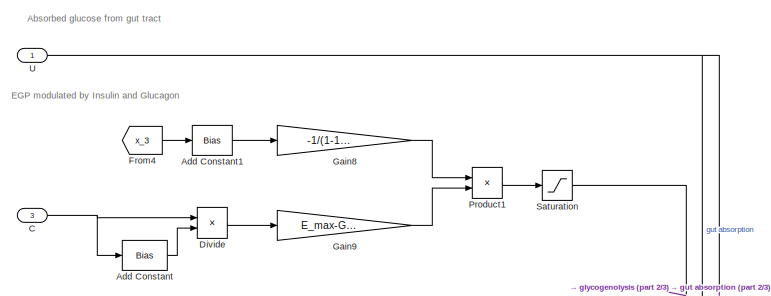
[diagram: Patient/Glucose PD - part 1/3, top center region]
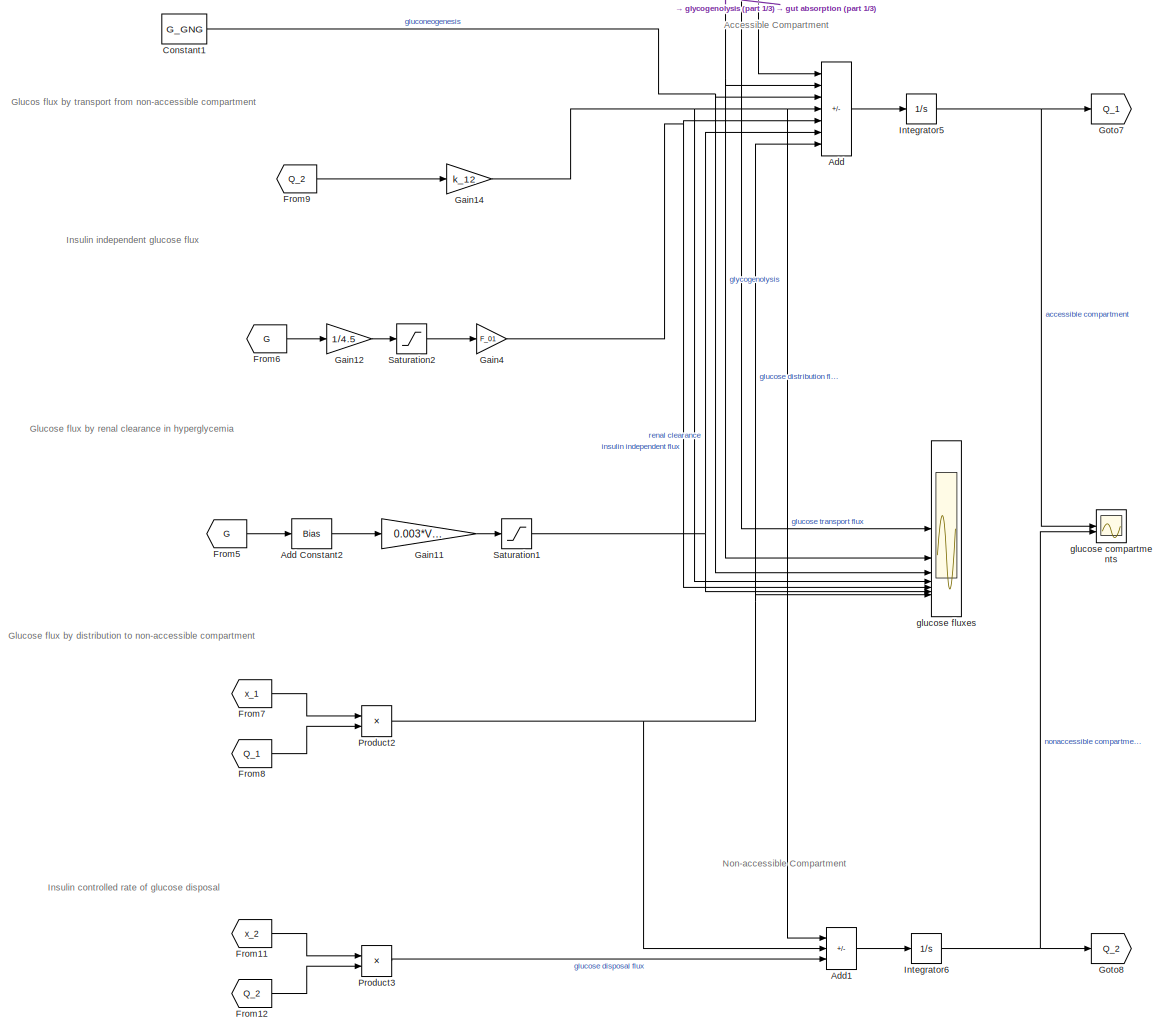
[diagram: Patient/Glucose PD - part 2/3, full width, middle band]
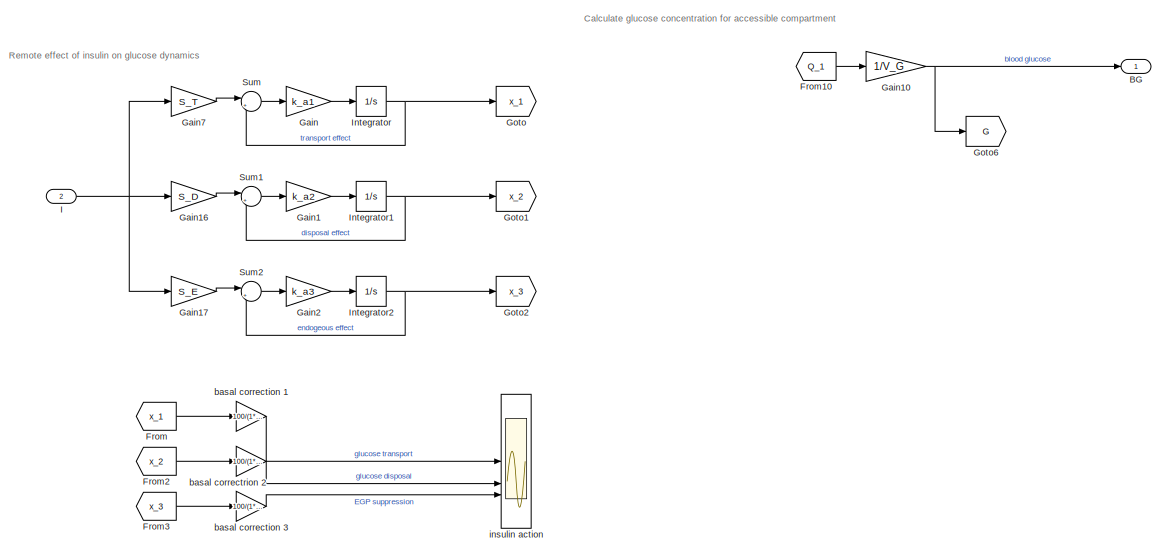
[diagram: Patient/Glucose PD - part 3/3, full width, bottom band]
BLOCK [SubSystem] Patient/Glucose PD
BLOCK [Sum] Patient/Glucose PD/Add
  IconShape = rectangular
  Inputs = ++++---
BLOCK [Bias] Patient/Glucose PD/Add Constant
  Bias = C_E50
  SaturateOnIntegerOverflow = off
BLOCK [Bias] Patient/Glucose PD/Add Constant1
  Bias = -1
  SaturateOnIntegerOverflow = off
BLOCK [Bias] Patient/Glucose PD/Add Constant2
  Bias = -9
  SaturateOnIntegerOverflow = off
BLOCK [Sum] Patient/Glucose PD/Add1
  IconShape = rectangular
  Inputs = -+-
BLOCK [Outport] Patient/Glucose PD/BG
BLOCK [Inport] Patient/Glucose PD/C
  Port = 3
BLOCK [Constant] Patient/Glucose PD/Constant1
  Value = G_GNG
BLOCK [Product] Patient/Glucose PD/Divide
  Inputs = */
BLOCK [From] Patient/Glucose PD/From
  GotoTag = x_1
BLOCK [From] Patient/Glucose PD/From10
  GotoTag = Q_1
BLOCK [From] Patient/Glucose PD/From11
  GotoTag = x_2
BLOCK [From] Patient/Glucose PD/From12
  GotoTag = Q_2
BLOCK [From] Patient/Glucose PD/From2
  GotoTag = x_2
BLOCK [From] Patient/Glucose PD/From3
  GotoTag = x_3
BLOCK [From] Patient/Glucose PD/From4
  GotoTag = x_3
BLOCK [From] Patient/Glucose PD/From5
  GotoTag = G
BLOCK [From] Patient/Glucose PD/From6
  GotoTag = G
BLOCK [From] Patient/Glucose PD/From7
  GotoTag = x_1
BLOCK [From] Patient/Glucose PD/From8
  GotoTag = Q_1
BLOCK [From] Patient/Glucose PD/From9
  GotoTag = Q_2
BLOCK [Gain] Patient/Glucose PD/Gain
  Gain = k_a1
BLOCK [Gain] Patient/Glucose PD/Gain1
  Gain = k_a2
BLOCK [Gain] Patient/Glucose PD/Gain10
  Gain = 1/V_G
BLOCK [Gain] Patient/Glucose PD/Gain11
  Gain = 0.003*V_G
BLOCK [Gain] Patient/Glucose PD/Gain12
  Gain = 1/4.5
BLOCK [Gain] Patient/Glucose PD/Gain14
  Gain = k_12
BLOCK [Gain] Patient/Glucose PD/Gain16
  Gain = S_D
BLOCK [Gain] Patient/Glucose PD/Gain17
  Gain = S_E
BLOCK [Gain] Patient/Glucose PD/Gain2
  Gain = k_a3
BLOCK [Gain] Patient/Glucose PD/Gain4
  Gain = F_01
BLOCK [Gain] Patient/Glucose PD/Gain7
  Gain = S_T
BLOCK [Gain] Patient/Glucose PD/Gain8
  Gain = -1/(1-1*U_b0/(k_e*V_I*W)*S_E)
BLOCK [Gain] Patient/Glucose PD/Gain9
  Gain = E_max-G_GNG
BLOCK [Goto] Patient/Glucose PD/Goto
  GotoTag = x_1
BLOCK [Goto] Patient/Glucose PD/Goto1
  GotoTag = x_2
BLOCK [Goto] Patient/Glucose PD/Goto2
  GotoTag = x_3
BLOCK [Goto] Patient/Glucose PD/Goto6
  GotoTag = G
BLOCK [Goto] Patient/Glucose PD/Goto7
  GotoTag = Q_1
BLOCK [Goto] Patient/Glucose PD/Goto8
  GotoTag = Q_2
BLOCK [Inport] Patient/Glucose PD/I
  Port = 2
BLOCK [Integrator] Patient/Glucose PD/Integrator
  InitialCondition = 1*U_b0/(k_e*V_I*W)*S_T
BLOCK [Integrator] Patient/Glucose PD/Integrator1
  InitialCondition = 1*U_b0/(k_e*V_I*W)*S_D
BLOCK [Integrator] Patient/Glucose PD/Integrator2
  InitialCondition = U_b0/(k_e*V_I*W)*S_E
BLOCK [Integrator] Patient/Glucose PD/Integrator5
  InitialCondition = BG_0*V_G/18
BLOCK [Integrator] Patient/Glucose PD/Integrator6
  InitialCondition = S_T*(1*U_b0/(k_e*V_I*W))*(BG_0*V_G/18)/(k_12+S_D*(1*U_b0/(k_e*V_I*W)))
BLOCK [Product] Patient/Glucose PD/Product1
BLOCK [Product] Patient/Glucose PD/Product2
BLOCK [Product] Patient/Glucose PD/Product3
BLOCK [Saturate] Patient/Glucose PD/Saturation
  LowerLimit = 0
  UpperLimit = E_max-G_GNG
BLOCK [Saturate] Patient/Glucose PD/Saturation1
  LowerLimit = 0
  UpperLimit = 20
BLOCK [Saturate] Patient/Glucose PD/Saturation2
  LowerLimit = 0
  UpperLimit = 1
BLOCK [Sum] Patient/Glucose PD/Sum
  Inputs = |+-
BLOCK [Sum] Patient/Glucose PD/Sum1
  Inputs = |+-
BLOCK [Sum] Patient/Glucose PD/Sum2
  Inputs = |+-
BLOCK [Inport] Patient/Glucose PD/U
BLOCK [Gain] Patient/Glucose PD/basal correction 1
  Gain = 100/(1*U_b0/(k_e*V_I*W)*S_T)
BLOCK [Gain] Patient/Glucose PD/basal correction 3
  Gain = 100/(1*U_b0/(k_e*V_I*W)*S_E)
BLOCK [Gain] Patient/Glucose PD/basal correctrion 2
  Gain = 100/(1*U_b0/(k_e*V_I*W)*S_D)
BLOCK [Scope] Patient/Glucose PD/glucose compartments
  Floating = off
  NumInputPorts = 2
  ScopeSpecificationString = Simulink.scopes.TimeScopeBlockCfg('CurrentConfiguration', extmgr.ConfigurationSet(extmgr.Configuration('Core','General UI',true),extmgr.Configuration('Core','Source UI',true),extmgr.Configuration('Sources','WiredSimulink',true,'DataLoggingVariableName','ScopeData2'),extmgr.Configuration('Visuals','Time Domain',true,'SerializedDisplays',{struct('MinYLimReal','325.46068','MaxYLimReal','3409.03545','...<+1425ch>
BLOCK [Scope] Patient/Glucose PD/glucose fluxes
  Floating = off
  NumInputPorts = 7
  ScopeSpecificationString = Simulink.scopes.TimeScopeBlockCfg('CurrentConfiguration', extmgr.ConfigurationSet(extmgr.Configuration('Core','General UI',true),extmgr.Configuration('Core','Source UI',true),extmgr.Configuration('Sources','WiredSimulink',true,'DataLoggingVariableName','ScopeData3'),extmgr.Configuration('Visuals','Time Domain',true,'SerializedDisplays',{struct('MinYLimReal','-23.10459','MaxYLimReal','207.94134','Y...<+1711ch>
BLOCK [Scope] Patient/Glucose PD/insulin action
  Floating = off
  NumInputPorts = 3
  ScopeSpecificationString = Simulink.scopes.TimeScopeBlockCfg('CurrentConfiguration', extmgr.ConfigurationSet(extmgr.Configuration('Core','General UI',true),extmgr.Configuration('Core','Source UI',true),extmgr.Configuration('Sources','WiredSimulink',true,'DataLoggingVariableName','ScopeData1'),extmgr.Configuration('Visuals','Time Domain',true,'SerializedDisplays',{struct('MinYLimReal','36.39277','MaxYLimReal','672.46508','YL...<+1421ch>
BLOCK [SubSystem] Patient/Gut Absorption
BLOCK [Inport] Patient/Gut Absorption/CHO
BLOCK [Gain] Patient/Gut Absorption/Gain
  Gain = 1/(t_max_G)
BLOCK [Gain] Patient/Gut Absorption/Gain1
  Gain = 1/(t_max_G)
BLOCK [Gain] Patient/Gut Absorption/Gain2
  Gain = 1/M_g
BLOCK [Gain] Patient/Gut Absorption/Gain3
  Gain = A_G
BLOCK [Gain] Patient/Gut Absorption/Gain4
  Gain = 10^6/W
BLOCK [Integrator] Patient/Gut Absorption/Integrator
BLOCK [Integrator] Patient/Gut Absorption/Integrator1
BLOCK [Sum] Patient/Gut Absorption/Sum
  Inputs = -+|
BLOCK [Sum] Patient/Gut Absorption/Sum1
  Inputs = -+|
BLOCK [Outport] Patient/Gut Absorption/U
BLOCK [SubSystem] Patient/Insulin PK
BLOCK [Gain] Patient/Insulin PK/Gain
  Gain = 1/(t_max_I)
BLOCK [Gain] Patient/Insulin PK/Gain1
  Gain = 1/(t_max_I)
BLOCK [Gain] Patient/Insulin PK/Gain2
  Gain = 1/(V_I*W)
BLOCK [Gain] Patient/Insulin PK/Gain3
  Gain = k_e
BLOCK [Outport] Patient/Insulin PK/I
BLOCK [Integrator] Patient/Insulin PK/Integrator
  InitialCondition = U_b0*t_max_I
BLOCK [Integrator] Patient/Insulin PK/Integrator1
  InitialCondition = U_b0*t_max_I
BLOCK [Integrator] Patient/Insulin PK/Integrator2
  InitialCondition = U_b0/(k_e*V_I*W)
BLOCK [Sum] Patient/Insulin PK/Sum
  Inputs = -+|
BLOCK [Sum] Patient/Insulin PK/Sum1
  Inputs = -+|
BLOCK [Sum] Patient/Insulin PK/Sum2
  Inputs = -+|
BLOCK [Inport] Patient/Insulin PK/UI
BLOCK [Scope] Patient/Scope
  Floating = off
  NumInputPorts = 2
  ScopeSpecificationString = Simulink.scopes.TimeScopeBlockCfg('CurrentConfiguration', extmgr.ConfigurationSet(extmgr.Configuration('Core','General UI',true),extmgr.Configuration('Core','Source UI',true),extmgr.Configuration('Sources','WiredSimulink',true,'DataLoggingVariableName','ScopeData1'),extmgr.Configuration('Visuals','Time Domain',true,'SerializedDisplays',{struct('MinYLimReal','-0.52601','MaxYLimReal','14.73412','YLa...<+1397ch>
BLOCK [Inport] Patient/UC
  Port = 3
BLOCK [Inport] Patient/UI
  Port = 2
BLOCK [SubSystem] Performance Evaluator
BLOCK [Logic] Performance Evaluator/AND
  AllPortsSameDT = off
  IconShape = distinctive
  OutDataTypeStr = boolean
BLOCK [Bias] Performance Evaluator/Add Constant
  Bias = 1
  SaturateOnIntegerOverflow = off
BLOCK [Bias] Performance Evaluator/Add Constant1
  Bias = 1
  SaturateOnIntegerOverflow = off
BLOCK [Bias] Performance Evaluator/Add Constant2
  Bias = 1
  SaturateOnIntegerOverflow = off
BLOCK [Inport] Performance Evaluator/BG
BLOCK [BusCreator] Performance Evaluator/Bus Creator
  DisplayOption = bar
  InheritFromInputs = on
  Inputs = 5
BLOCK [Constant] Performance Evaluator/Constant
  Value = Hyper_Threshold/18
BLOCK [Constant] Performance Evaluator/Constant1
  Value = Hypo_Threshold/18
BLOCK [Delay] Performance Evaluator/Delay
  DelayLength = 1
  InputPortMap = u0
BLOCK [Delay] Performance Evaluator/Delay1
  DelayLength = 1
  InitialCondition = 100
  InputPortMap = u0
BLOCK [Delay] Performance Evaluator/Delay2
  DelayLength = 1
  InputPortMap = u0
BLOCK [Delay] Performance Evaluator/Delay3
  DelayLength = 1
  InputPortMap = u0
BLOCK [Delay] Performance Evaluator/Delay4
  DelayLength = 1
  InputPortMap = u0
BLOCK [Delay] Performance Evaluator/Delay5
  DelayLength = 1
  InputPortMap = u0
BLOCK [Delay] Performance Evaluator/Delay6
  DelayLength = 1
  InputPortMap = u0
BLOCK [Display] Performance Evaluator/Display
  Decimation = 1
BLOCK [Display] Performance Evaluator/Display1
  Decimation = 1
BLOCK [Display] Performance Evaluator/Display2
  Decimation = 1
BLOCK [Display] Performance Evaluator/Display3
  Decimation = 1
BLOCK [Display] Performance Evaluator/Display4
  Decimation = 1
BLOCK [Outport] Performance Evaluator/EVA
BLOCK [Gain] Performance Evaluator/Gain
  Gain = 18
BLOCK [Gain] Performance Evaluator/Gain1
  Gain = 18
BLOCK [Gain] Performance Evaluator/Gain2
  Gain = 100/t_sim
BLOCK [RateTransition] Performance Evaluator/Rate Transition
  OutPortSampleTime = 1
BLOCK [RelationalOperator] Performance Evaluator/Relational Operator
  InputSameDT = off
  Operator = >
  OutDataTypeStr = boolean
  RndMeth = Simplest
BLOCK [RelationalOperator] Performance Evaluator/Relational Operator1
  InputSameDT = off
  Operator = <
  OutDataTypeStr = boolean
  RndMeth = Simplest
BLOCK [RelationalOperator] Performance Evaluator/Relational Operator2
  InputSameDT = off
  Operator = >
  OutDataTypeStr = boolean
  RndMeth = Simplest
BLOCK [RelationalOperator] Performance Evaluator/Relational Operator3
  InputSameDT = off
  Operator = >
  OutDataTypeStr = boolean
  RndMeth = Simplest
BLOCK [RelationalOperator] Performance Evaluator/Relational Operator4
  InputSameDT = off
  Operator = <
  OutDataTypeStr = boolean
  RndMeth = Simplest
BLOCK [RelationalOperator] Performance Evaluator/Relational Operator5
  InputSameDT = off
  Operator = <
  OutDataTypeStr = boolean
  RndMeth = Simplest
BLOCK [Relay] Performance Evaluator/Relay
  OffSwitchValue = Hyper_Hyst_L
  OnSwitchValue = Hyper_Hyst_H
BLOCK [Relay] Performance Evaluator/Relay1
  OffOutputValue = 1
  OffSwitchValue = Hypo_Hyst_L
  OnOutputValue = 0
  OnSwitchValue = Hypo_Hyst_H
BLOCK [Switch] Performance Evaluator/Switch
  Criteria = u2 ~= 0
  InputSameDT = off
  SaturateOnIntegerOverflow = off
BLOCK [Switch] Performance Evaluator/Switch1
  Criteria = u2 ~= 0
  InputSameDT = off
  SaturateOnIntegerOverflow = off
BLOCK [Switch] Performance Evaluator/Switch2
  Criteria = u2 > Threshold
  InputSameDT = off
  SaturateOnIntegerOverflow = off
BLOCK [Switch] Performance Evaluator/Switch3
  Criteria = u2 > Threshold
  InputSameDT = off
  SaturateOnIntegerOverflow = off
BLOCK [Switch] Performance Evaluator/Switch4
  Criteria = u2 > Threshold
  InputSameDT = off
  SaturateOnIntegerOverflow = off
BLOCK [Scope] Scope
  Floating = off
  NumInputPorts = 1
  ScopeSpecificationString = Simulink.scopes.TimeScopeBlockCfg('CurrentConfiguration', extmgr.ConfigurationSet(extmgr.Configuration('Core','General UI',true),extmgr.Configuration('Core','Source UI',true),extmgr.Configuration('Sources','WiredSimulink',true,'DataLoggingVariableName','ScopeData1'),extmgr.Configuration('Visuals','Time Domain',true,'SerializedDisplays',{struct('MinYLimReal','40.14664','MaxYLimReal','275.31308','YL...<+1410ch>
BLOCK [Scope] Scope1
  Floating = off
  NumInputPorts = 1
  ScopeSpecificationString = Simulink.scopes.TimeScopeBlockCfg('CurrentConfiguration', extmgr.ConfigurationSet(extmgr.Configuration('Core','General UI',true),extmgr.Configuration('Core','Source UI',true),extmgr.Configuration('Sources','WiredSimulink',true,'DataLoggingVariableName','ScopeData1'),extmgr.Configuration('Visuals','Time Domain',true,'SerializedDisplays',{struct('MinYLimReal','-0.5625','MaxYLimReal','5.0625','YLabel...<+1417ch>
BLOCK [ToWorkspace] To Workspace
  FixptAsFi = on
  MaxDataPoints = inf
  SampleTime = -1
  SaveFormat = Timeseries
  VariableName = blood_glucose
BLOCK [ToWorkspace] To Workspace2
  FixptAsFi = on
  MaxDataPoints = inf
  SampleTime = -1
  SaveFormat = Timeseries
  VariableName = simout
ANNOTATION CGM Sensor: Blood-Glucose to Interstitial-Glucose Delay
ANNOTATION CGM Sensor: Non-ideal Sensor
ANNOTATION Controller: Cadidate controllers
ANNOTATION Controller: Controller Output Blood glucose measurement is mg/dL basal data is in mili units of insulin glucagon data is in pico grams (mass) output to actuator should be mili units for insulin and pico grams for glucagon
ANNOTATION Controller: Controller selector: 1. Controlled Experiment (edit in "init.m") 2. PID Combined Controller 3. Double PID Controller 4. MPC Controller 5. Feed Forward Controller
ANNOTATION Controller: Evaluator Outputs
ANNOTATION Controller: Insulin Glucagon interaction test results
ANNOTATION Controller: Maximum Blood Glucose (mg/dl)
ANNOTATION Controller: Minimum Blood Glucose (mg/dl)
ANNOTATION Controller: Number of Hyperglycemia Events
ANNOTATION Controller: Number of Hypoglycemia Events
ANNOTATION Controller: Percentage of Time-In-Range
ANNOTATION Controller: Store max BG
ANNOTATION Controller/PID controller (shared ins + glucagon) /Standard PID controller : Constants purely for BG graph regions
ANNOTATION Controller/double PID controller /Standard PID controller : Constants purely for BG graph regions
ANNOTATION Controller/double PID controller /Standard PID controller : Glucagon PID controller
ANNOTATION Controller/double PID controller /Standard PID controller : Insulin PID controller
ANNOTATION Patient/Glucagon PK: Glucagon concentration in plasma
ANNOTATION Patient/Glucagon PK: Glucagon mass due to exogenous dosing, in SC tissue
ANNOTATION Patient/Glucagon PK: Glucagon mass due to exogenous dosing, in plasma
ANNOTATION Patient/Glucose PD: Absorbed glucose from gut tract
ANNOTATION Patient/Glucose PD: Accessible Compartment
ANNOTATION Patient/Glucose PD: Calculate glucose concentration for accessible compartment
ANNOTATION Patient/Glucose PD: EGP modulated by Insulin and Glucagon
ANNOTATION Patient/Glucose PD: Glucos flux by transport from non-accessible compartment
ANNOTATION Patient/Glucose PD: Glucose flux by distribution to non-accessible compartment
ANNOTATION Patient/Glucose PD: Glucose flux by renal clearance in hyperglycemia
ANNOTATION Patient/Glucose PD: Insulin controlled rate of glucose disposal
ANNOTATION Patient/Glucose PD: Insulin independent glucose flux
ANNOTATION Patient/Glucose PD: Non-accessible Compartment
ANNOTATION Patient/Glucose PD: Remote effect of insulin on glucose dynamics
ANNOTATION Patient/Gut Absorption: Glucose mass due to gut absorption, in absorbed compartment
ANNOTATION Patient/Gut Absorption: Glucose mass due to gut absorption, in accessible compartment
ANNOTATION Patient/Gut Absorption: Unit Conversion: [g/min] -> [umol/kg/min]
ANNOTATION Patient/Insulin PK: Insulin concentration in plasma
ANNOTATION Patient/Insulin PK: Insulin mass due to exogenous dosing, in SC tissue
ANNOTATION Patient/Insulin PK: Insulin mass due to exogenous dosing, in serum
ANNOTATION Performance Evaluator: Hyperglycemia Cache
ANNOTATION Performance Evaluator: Hyperglycemia Counter
ANNOTATION Performance Evaluator: Hypoglycemia Cache
ANNOTATION Performance Evaluator: Hypoglycemia Counter
ANNOTATION Performance Evaluator: Time-In-Range Timer
NET Actuator/Saturation1:1 -> Actuator/Scope:2, Actuator/Transfer Fcn1:1
NET Actuator/Saturation:1 -> Actuator/Scope:1, Actuator/Transfer Fcn:1
NET Actuator/Transfer Fcn1:1 -> Actuator/Scope:4, Actuator/UI:1
NET Actuator/Transfer Fcn:1 -> Actuator/Scope:3, Actuator/UC:1
LINE Actuator/UCC:1 -> Actuator/Saturation:1
LINE Actuator/UIC:1 -> Actuator/Saturation1:1
LINE Actuator:1 -> Patient:3
LINE Actuator:2 -> Patient:2
NET CGM Sensor/BG:1 -> CGM Sensor/Gain2:1, CGM Sensor/Sum:1
LINE CGM Sensor/Discrete Filter1:1 -> CGM Sensor/Sum2:2
LINE CGM Sensor/Discrete Filter:1 -> CGM Sensor/Sum2:1
NET CGM Sensor/Gain2:1 -> CGM Sensor/Sampling Rate1:1, CGM Sensor/Scope:2
LINE CGM Sensor/Gain:1 -> CGM Sensor/Integrator:1
NET CGM Sensor/Integrator:1 -> CGM Sensor/Sum:2, CGM Sensor/Unit Conversion:1
LINE CGM Sensor/Random Number1:1 -> CGM Sensor/Discrete Filter1:1
LINE CGM Sensor/Random Number:1 -> CGM Sensor/Discrete Filter:1
LINE CGM Sensor/Sampling Rate1:1 -> CGM Sensor/To Workspace:1
LINE CGM Sensor/Sampling Rate:1 -> CGM Sensor/Sum1:1
NET CGM Sensor/Sum1:1 -> CGM Sensor/IG:1, CGM Sensor/Scope:1, CGM Sensor/To Workspace1:1
LINE CGM Sensor/Sum2:1 -> CGM Sensor/Sum1:2
LINE CGM Sensor/Sum:1 -> CGM Sensor/Gain:1
LINE CGM Sensor/Unit Conversion:1 -> CGM Sensor/Sampling Rate:1
NET CGM Sensor:1 -> Controller:1, Scope:1, To Workspace:1
LINE Controller/Add:1 -> Controller/Sum1:1
LINE Controller/Bus Selector:1 -> Controller/Display:1
LINE Controller/Bus Selector:2 -> Controller/Display1:1
LINE Controller/Bus Selector:3 -> Controller/Display2:1
LINE Controller/Bus Selector:4 -> Controller/Display3:1
LINE Controller/Bus Selector:5 -> Controller/Display4:1
LINE Controller/Constant1:1 -> Controller/Controller State Manager:1
LINE Controller/Constant2:1 -> Controller/Controller State Manager:2
LINE Controller/Controller State Manager/Add Constant:1 -> Controller/Controller State Manager/Switch:1
NET Controller/Controller State Manager/Chart:1 -> Controller/Controller State Manager/Delay1:1, Controller/Controller State Manager/Scope3:1
LINE Controller/Controller State Manager/Chart:2 -> Controller/Controller State Manager/insulin controller:1
LINE Controller/Controller State Manager/Compare To Constant:1 -> Controller/Controller State Manager/OR:1
LINE Controller/Controller State Manager/Constant1:1 -> Controller/Controller State Manager/Chart:6
LINE Controller/Controller State Manager/Constant4:1 -> Controller/Controller State Manager/Switch:3
LINE Controller/Controller State Manager/Constant5:1 -> Controller/Controller State Manager/Chart:2
LINE Controller/Controller State Manager/Constant:1 -> Controller/Controller State Manager/Chart:3
LINE Controller/Controller State Manager/Delay1:1 -> Controller/Controller State Manager/Switch:2
LINE Controller/Controller State Manager/Delay:1 -> Controller/Controller State Manager/Add Constant:1
LINE Controller/Controller State Manager/From Workspace1:1 -> Controller/Controller State Manager/Rate Transition1:1
LINE Controller/Controller State Manager/From Workspace:1 -> Controller/Controller State Manager/Rate Transition3:1
LINE Controller/Controller State Manager/OR:1 -> Controller/Controller State Manager/Chart:7
LINE Controller/Controller State Manager/Rate Transition1:1 -> Controller/Controller State Manager/OR:2
LINE Controller/Controller State Manager/Rate Transition3:1 -> Controller/Controller State Manager/Compare To Constant:1
NET Controller/Controller State Manager/Switch:1 -> Controller/Controller State Manager/Chart:1, Controller/Controller State Manager/Delay:1
NET Controller/Controller State Manager/feedback scheme:1 -> Controller/Controller State Manager/Chart:4, Controller/Controller State Manager/glucagon controller:1
LINE Controller/Controller State Manager/feedforward scheme:1 -> Controller/Controller State Manager/Chart:5
NET Controller/Controller State Manager:1 -> Controller/Multiport Switch1:1, Controller/Scope5:1
LINE Controller/Controller State Manager:2 -> Controller/Multiport Switch:1
NET Controller/Delay:1 -> Controller/Relational Operator:2, Controller/Switch:3
LINE Controller/EVA:1 -> Controller/Bus Selector:1
LINE Controller/From Workspace1:1 -> Controller/Scope2:1
LINE Controller/From Workspace2:1 -> Controller/Scope2:3
LINE Controller/From Workspace3:1 -> Controller/Add:1
LINE Controller/From Workspace4:1 -> Controller/Add:2
LINE Controller/From Workspace:1 -> Controller/Gain1:1
LINE Controller/Gain1:1 -> Controller/Scope:2
LINE Controller/Gain2:1 -> Controller/Sum2:2
LINE Controller/Gain4:1 -> Controller/Sum1:2
LINE Controller/Gain:1 -> Controller/Scope1:1
LINE Controller/IG:1 -> Controller/signal reconstructor:1
NET Controller/Integrator1:1 -> Controller/Gain2:1, Controller/Scope4:1, Controller/double PID controller :2
NET Controller/Integrator:1 -> Controller/Gain4:1, Controller/Scope2:4, Controller/Zero-Order Hold:1
NET Controller/MPC controller/BG:1 -> Controller/MPC controller/MATLAB Function1:1, Controller/MPC controller/MATLAB Function2:1, Controller/MPC controller/MATLAB Function:1, Controller/MPC controller/MPC Function:1, Controller/MPC controller/Scope:3
LINE Controller/MPC controller/Constant10:1 -> Controller/MPC controller/MATLAB Function1:9
LINE Controller/MPC controller/Constant11:1 -> Controller/MPC controller/MATLAB Function1:10
LINE Controller/MPC controller/Constant12:1 -> Controller/MPC controller/MATLAB Function1:11
LINE Controller/MPC controller/Constant13:1 -> Controller/MPC controller/MATLAB Function2:2
LINE Controller/MPC controller/Constant1:1 -> Controller/MPC controller/Scope:5
LINE Controller/MPC controller/Constant2:1 -> Controller/MPC controller/Scope:6
LINE Controller/MPC controller/Constant3:1 -> Controller/MPC controller/MATLAB Function1:2
LINE Controller/MPC controller/Constant4:1 -> Controller/MPC controller/MATLAB Function1:3
LINE Controller/MPC controller/Constant5:1 -> Controller/MPC controller/MATLAB Function1:4
LINE Controller/MPC controller/Constant6:1 -> Controller/MPC controller/MATLAB Function1:5
LINE Controller/MPC controller/Constant7:1 -> Controller/MPC controller/MATLAB Function1:6
LINE Controller/MPC controller/Constant8:1 -> Controller/MPC controller/MATLAB Function1:7
LINE Controller/MPC controller/Constant9:1 -> Controller/MPC controller/MATLAB Function1:8
LINE Controller/MPC controller/Constant:1 -> Controller/MPC controller/Scope:4
NET Controller/MPC controller/MPC Function:1 -> Controller/MPC controller/Scope1:1, Controller/MPC controller/insulin:1
NET Controller/MPC controller/MPC Function:2 -> Controller/MPC controller/Scope1:2, Controller/MPC controller/glucagon:1
LINE Controller/MPC controller:1 -> Controller/Multiport Switch:5
LINE Controller/MPC controller:2 -> Controller/Multiport Switch1:5
NET Controller/Multiport Switch1:1 -> Controller/Scope3:1, Controller/safety features:3
LINE Controller/Multiport Switch:1 -> Controller/safety features:1
NET Controller/PID controller (shared ins + glucagon) /BG:1 -> Controller/PID controller (shared ins + glucagon) /Scope:9, Controller/PID controller (shared ins + glucagon) /Standard PID controller :1
LINE Controller/PID controller (shared ins + glucagon) /Constant2:1 -> Controller/PID controller (shared ins + glucagon) /Switch1:1
LINE Controller/PID controller (shared ins + glucagon) /From Workspace:1 -> Controller/PID controller (shared ins + glucagon) /Gain2:1
LINE Controller/PID controller (shared ins + glucagon) /Gain1:1 -> Controller/PID controller (shared ins + glucagon) /glucagon:1
LINE Controller/PID controller (shared ins + glucagon) /Gain2:1 -> Controller/PID controller (shared ins + glucagon) /Scope:8
NET Controller/PID controller (shared ins + glucagon) /Saturation1:1 -> Controller/PID controller (shared ins + glucagon) /Scope:1, Controller/PID controller (shared ins + glucagon) /insulin:1
LINE Controller/PID controller (shared ins + glucagon) /Standard PID controller /Add1:1 -> Controller/PID controller (shared ins + glucagon) /Standard PID controller /Gain:1
NET Controller/PID controller (shared ins + glucagon) /Standard PID controller /Add2:1 -> Controller/PID controller (shared ins + glucagon) /Standard PID controller /Delay1:1, Controller/PID controller (shared ins + glucagon) /Standard PID controller /Gain3:1
LINE Controller/PID controller (shared ins + glucagon) /Standard PID controller /Add3:1 -> Controller/PID controller (shared ins + glucagon) /Standard PID controller /controller ouput:1
NET Controller/PID controller (shared ins + glucagon) /Standard PID controller /Add:1 -> Controller/PID controller (shared ins + glucagon) /Standard PID controller /Add1:1, Controller/PID controller (shared ins + glucagon) /Standard PID controller /Add2:1, Controller/PID controller (shared ins + glucagon) /Standard PID controller /Delay:1, Controller/PID controller (shared ins + glucagon) /Standard PID controller /Delay:2, Controller/PID controller (shared ins + glucagon) /Standard PID controller /Gain2:1
LINE Controller/PID controller (shared ins + glucagon) /Standard PID controller /Constant1:1 -> Controller/PID controller (shared ins + glucagon) /Standard PID controller /Out1:1
LINE Controller/PID controller (shared ins + glucagon) /Standard PID controller /Constant2:1 -> Controller/PID controller (shared ins + glucagon) /Standard PID controller /Out4:1
LINE Controller/PID controller (shared ins + glucagon) /Standard PID controller /Constant3:1 -> Controller/PID controller (shared ins + glucagon) /Standard PID controller /Out2:1
LINE Controller/PID controller (shared ins + glucagon) /Standard PID controller /Constant:1 -> Controller/PID controller (shared ins + glucagon) /Standard PID controller /Add:2
LINE Controller/PID controller (shared ins + glucagon) /Standard PID controller /Delay1:1 -> Controller/PID controller (shared ins + glucagon) /Standard PID controller /Add2:2
LINE Controller/PID controller (shared ins + glucagon) /Standard PID controller /Delay:1 -> Controller/PID controller (shared ins + glucagon) /Standard PID controller /Add1:2
LINE Controller/PID controller (shared ins + glucagon) /Standard PID controller /Estimated BG (mg//dL):1 -> Controller/PID controller (shared ins + glucagon) /Standard PID controller /Add:1
LINE Controller/PID controller (shared ins + glucagon) /Standard PID controller /Gain1:1 -> Controller/PID controller (shared ins + glucagon) /Standard PID controller /Add3:1
LINE Controller/PID controller (shared ins + glucagon) /Standard PID controller /Gain2:1 -> Controller/PID controller (shared ins + glucagon) /Standard PID controller /Add3:2
LINE Controller/PID controller (shared ins + glucagon) /Standard PID controller /Gain3:1 -> Controller/PID controller (shared ins + glucagon) /Standard PID controller /Add3:3
LINE Controller/PID controller (shared ins + glucagon) /Standard PID controller /Gain:1 -> Controller/PID controller (shared ins + glucagon) /Standard PID controller /Gain1:1
NET Controller/PID controller (shared ins + glucagon) /Standard PID controller :1 -> Controller/PID controller (shared ins + glucagon) /Saturation1:1, Controller/PID controller (shared ins + glucagon) /Scope:4, Controller/PID controller (shared ins + glucagon) /Switch1:2, Controller/PID controller (shared ins + glucagon) /Switch1:3
LINE Controller/PID controller (shared ins + glucagon) /Standard PID controller :2 -> Controller/PID controller (shared ins + glucagon) /Scope:5
LINE Controller/PID controller (shared ins + glucagon) /Standard PID controller :3 -> Controller/PID controller (shared ins + glucagon) /Scope:6
LINE Controller/PID controller (shared ins + glucagon) /Standard PID controller :4 -> Controller/PID controller (shared ins + glucagon) /Scope:7
NET Controller/PID controller (shared ins + glucagon) /Switch1:1 -> Controller/PID controller (shared ins + glucagon) /Gain1:1, Controller/PID controller (shared ins + glucagon) /Scope:2
LINE Controller/PID controller (shared ins + glucagon) :1 -> Controller/Multiport Switch:3
LINE Controller/PID controller (shared ins + glucagon) :2 -> Controller/Multiport Switch1:3
NET Controller/Rate Transition1:1 -> Controller/Gain:1, Controller/UC:1
NET Controller/Rate Transition:1 -> Controller/Scope1:2, Controller/UI:1
LINE Controller/Relational Operator:1 -> Controller/Switch:2
LINE Controller/Sum1:1 -> Controller/Integrator:1
LINE Controller/Sum2:1 -> Controller/Integrator1:1
NET Controller/Switch:1 -> Controller/BG Max :1, Controller/Delay:1
LINE Controller/Zero-Order Hold:1 -> Controller/To Workspace1:1
LINE Controller/controlled experiment/BG:1 -> Controller/controlled experiment/Terminator:1
LINE Controller/controlled experiment/From Workspace2:1 -> Controller/controlled experiment/insulin:1
LINE Controller/controlled experiment/From Workspace:1 -> Controller/controlled experiment/glucagon:1
LINE Controller/controlled experiment:1 -> Controller/Multiport Switch:2
LINE Controller/controlled experiment:2 -> Controller/Multiport Switch1:2
NET Controller/double PID controller /BG:1 -> Controller/double PID controller /Scope:7, Controller/double PID controller /Standard PID controller :1
LINE Controller/double PID controller /Blood Insulin:1 -> Controller/double PID controller /Standard PID controller :2
LINE Controller/double PID controller /Constant1:1 -> Controller/double PID controller /Switch1:3
LINE Controller/double PID controller /Constant:1 -> Controller/double PID controller /Switch:3
LINE Controller/double PID controller /From Workspace:1 -> Controller/double PID controller /Gain2:1
LINE Controller/double PID controller /Gain2:1 -> Controller/double PID controller /Scope:1
NET Controller/double PID controller /Saturation1:1 -> Controller/double PID controller /Switch1:1, Controller/double PID controller /Switch1:2
NET Controller/double PID controller /Saturation:1 -> Controller/double PID controller /Switch:1, Controller/double PID controller /Switch:2
LINE Controller/double PID controller /Standard PID controller /Add1:1 -> Controller/double PID controller /Standard PID controller /Gain:1
NET Controller/double PID controller /Standard PID controller /Add2:1 -> Controller/double PID controller /Standard PID controller /Delay1:1, Controller/double PID controller /Standard PID controller /Gain3:1
LINE Controller/double PID controller /Standard PID controller /Add3:1 -> Controller/double PID controller /Standard PID controller /insulin ouput:1
NET Controller/double PID controller /Standard PID controller /Add4:1 -> Controller/double PID controller /Standard PID controller /Add5:1, Controller/double PID controller /Standard PID controller /Add6:1, Controller/double PID controller /Standard PID controller /Delay2:1, Controller/double PID controller /Standard PID controller /Delay2:2, Controller/double PID controller /Standard PID controller /Gain6:1
LINE Controller/double PID controller /Standard PID controller /Add5:1 -> Controller/double PID controller /Standard PID controller /Gain4:1
NET Controller/double PID controller /Standard PID controller /Add6:1 -> Controller/double PID controller /Standard PID controller /Delay3:1, Controller/double PID controller /Standard PID controller /Gain7:1
LINE Controller/double PID controller /Standard PID controller /Add7:1 -> Controller/double PID controller /Standard PID controller /so that -ve output injects glucagon:1
NET Controller/double PID controller /Standard PID controller /Add:1 -> Controller/double PID controller /Standard PID controller /Add1:1, Controller/double PID controller /Standard PID controller /Add2:1, Controller/double PID controller /Standard PID controller /Delay:1, Controller/double PID controller /Standard PID controller /Delay:2, Controller/double PID controller /Standard PID controller /Gain2:1
LINE Controller/double PID controller /Standard PID controller /Blood Insulin:1 -> Controller/double PID controller /Standard PID controller /sigmoid scaling:1
LINE Controller/double PID controller /Standard PID controller /Constant1:1 -> Controller/double PID controller /Standard PID controller /reference:1
LINE Controller/double PID controller /Standard PID controller /Constant2:1 -> Controller/double PID controller /Standard PID controller /hyper:1
LINE Controller/double PID controller /Standard PID controller /Constant3:1 -> Controller/double PID controller /Standard PID controller /hypo:1
LINE Controller/double PID controller /Standard PID controller /Constant4:1 -> Controller/double PID controller /Standard PID controller /Switch:2
LINE Controller/double PID controller /Standard PID controller /Constant5:1 -> Controller/double PID controller /Standard PID controller /sigmoid scaling:3
LINE Controller/double PID controller /Standard PID controller /Constant6:1 -> Controller/double PID controller /Standard PID controller /sigmoid scaling:2
NET Controller/double PID controller /Standard PID controller /Constant:1 -> Controller/double PID controller /Standard PID controller /Add4:1, Controller/double PID controller /Standard PID controller /Add:2
LINE Controller/double PID controller /Standard PID controller /Delay1:1 -> Controller/double PID controller /Standard PID controller /Add2:2
LINE Controller/double PID controller /Standard PID controller /Delay2:1 -> Controller/double PID controller /Standard PID controller /Add5:2
LINE Controller/double PID controller /Standard PID controller /Delay3:1 -> Controller/double PID controller /Standard PID controller /Add6:2
LINE Controller/double PID controller /Standard PID controller /Delay:1 -> Controller/double PID controller /Standard PID controller /Add1:2
NET Controller/double PID controller /Standard PID controller /Estimated BG (mg//dL):1 -> Controller/double PID controller /Standard PID controller /Add4:2, Controller/double PID controller /Standard PID controller /Add:1
LINE Controller/double PID controller /Standard PID controller /Gain1:1 -> Controller/double PID controller /Standard PID controller /Add3:1
LINE Controller/double PID controller /Standard PID controller /Gain2:1 -> Controller/double PID controller /Standard PID controller /Add3:2
LINE Controller/double PID controller /Standard PID controller /Gain3:1 -> Controller/double PID controller /Standard PID controller /Add3:3
LINE Controller/double PID controller /Standard PID controller /Gain4:1 -> Controller/double PID controller /Standard PID controller /Gain5:1
LINE Controller/double PID controller /Standard PID controller /Gain5:1 -> Controller/double PID controller /Standard PID controller /Add7:1
LINE Controller/double PID controller /Standard PID controller /Gain6:1 -> Controller/double PID controller /Standard PID controller /Add7:2
LINE Controller/double PID controller /Standard PID controller /Gain7:1 -> Controller/double PID controller /Standard PID controller /Add7:3
LINE Controller/double PID controller /Standard PID controller /Gain:1 -> Controller/double PID controller /Standard PID controller /Gain1:1
LINE Controller/double PID controller /Standard PID controller /Switch:1 -> Controller/double PID controller /Standard PID controller /glucagon output:1
NET Controller/double PID controller /Standard PID controller /multiply:1 -> Controller/double PID controller /Standard PID controller /Scope:2, Controller/double PID controller /Standard PID controller /Switch:3
NET Controller/double PID controller /Standard PID controller /sigmoid scaling:1 -> Controller/double PID controller /Standard PID controller /Scope:3, Controller/double PID controller /Standard PID controller /multiply:2
NET Controller/double PID controller /Standard PID controller /so that -ve output injects glucagon:1 -> Controller/double PID controller /Standard PID controller /Scope:1, Controller/double PID controller /Standard PID controller /Switch:1, Controller/double PID controller /Standard PID controller /multiply:1
LINE Controller/double PID controller /Standard PID controller :1 -> Controller/double PID controller /Saturation:1
LINE Controller/double PID controller /Standard PID controller :2 -> Controller/double PID controller /Scope:3
LINE Controller/double PID controller /Standard PID controller :3 -> Controller/double PID controller /Scope:4
LINE Controller/double PID controller /Standard PID controller :4 -> Controller/double PID controller /Scope:5
LINE Controller/double PID controller /Standard PID controller :5 -> Controller/double PID controller /Saturation1:1
NET Controller/double PID controller /Switch1:1 -> Controller/double PID controller /Scope:6, Controller/double PID controller /due to lower potency of glucagon:1
NET Controller/double PID controller /Switch:1 -> Controller/double PID controller /Scope:2, Controller/double PID controller /insulin:1
LINE Controller/double PID controller /due to lower potency of glucagon:1 -> Controller/double PID controller /glucagon:1
LINE Controller/double PID controller :1 -> Controller/Multiport Switch:4
LINE Controller/double PID controller :2 -> Controller/Multiport Switch1:4
LINE Controller/feed-forward controller/Add Constant1:1 -> Controller/feed-forward controller/Saturation:1
LINE Controller/feed-forward controller/Add Constant:1 -> Controller/feed-forward controller/Switch1:1
LINE Controller/feed-forward controller/Cast To Boolean:1 -> Controller/feed-forward controller/OR:2
LINE Controller/feed-forward controller/Compare To Constant:1 -> Controller/feed-forward controller/NOT:1
LINE Controller/feed-forward controller/Constant1:1 -> Controller/feed-forward controller/Switch1:3
LINE Controller/feed-forward controller/Constant:1 -> Controller/feed-forward controller/Switch:3
NET Controller/feed-forward controller/Delay1:1 -> Controller/feed-forward controller/Add Constant:1, Controller/feed-forward controller/Compare To Constant:1
LINE Controller/feed-forward controller/Delay:1 -> Controller/feed-forward controller/OR:1
LINE Controller/feed-forward controller/From Workspace1:1 -> Controller/feed-forward controller/Rate Transition1:1
LINE Controller/feed-forward controller/From Workspace:1 -> Controller/feed-forward controller/Rate Transition:1
LINE Controller/feed-forward controller/Gain1:1 -> Controller/feed-forward controller/Sum:1
LINE Controller/feed-forward controller/Gain:1 -> Controller/feed-forward controller/insulin:1
LINE Controller/feed-forward controller/NOT:1 -> Controller/feed-forward controller/Switch:2
LINE Controller/feed-forward controller/OR:1 -> Controller/feed-forward controller/Switch:1
NET Controller/feed-forward controller/Rate Transition1:1 -> Controller/feed-forward controller/Cast To Boolean:1, Controller/feed-forward controller/Gain1:1
NET Controller/feed-forward controller/Rate Transition:1 -> Controller/feed-forward controller/Add Constant1:1, Controller/feed-forward controller/Switch2:3
LINE Controller/feed-forward controller/Saturation:1 -> Controller/feed-forward controller/Switch2:1
NET Controller/feed-forward controller/Sum:1 -> Controller/feed-forward controller/Gain:1, Controller/feed-forward controller/Scope1:1
LINE Controller/feed-forward controller/Switch1:1 -> Controller/feed-forward controller/Delay1:1
LINE Controller/feed-forward controller/Switch2:1 -> Controller/feed-forward controller/Sum:2
NET Controller/feed-forward controller/Switch:1 -> Controller/feed-forward controller/Delay:1, Controller/feed-forward controller/Scope:1, Controller/feed-forward controller/Switch1:2, Controller/feed-forward controller/Switch2:2
LINE Controller/feed-forward controller:1 -> Controller/Multiport Switch:6
LINE Controller/feed-forward controller:2 -> Controller/Multiport Switch1:6
LINE Controller/safety features/Actual Insulin Input:1 -> Controller/safety features/Safety Features:4
LINE Controller/safety features/Actual glucagon output:1 -> Controller/safety features/Scope:2
NET Controller/safety features/BG:1 -> Controller/safety features/Hypoglycemia:2, Controller/safety features/Hypoglycemic Switch:2
LINE Controller/safety features/Constant1:1 -> Controller/safety features/Hypoglycemia:3
LINE Controller/safety features/Constant2:1 -> Controller/safety features/Hypoglycemia:1
LINE Controller/safety features/Constant3:1 -> Controller/safety features/Hypoglycemic Switch:3
NET Controller/safety features/From Workspace1:1 -> Controller/safety features/Insulin switch:1, Controller/safety features/Sum:1
LINE Controller/safety features/Gain1:1 -> Controller/safety features/Sum1:2
LINE Controller/safety features/Gain2:1 -> Controller/safety features/Saturation:1
LINE Controller/safety features/Gain3:1 -> Controller/safety features/Integral of bolus and leak1:1
LINE Controller/safety features/Gain4:1 -> Controller/safety features/Sum2:2
LINE Controller/safety features/Gain:1 -> Controller/safety features/Integral of bolus and leak:1
LINE Controller/safety features/Hypoglycemia:1 -> Controller/safety features/Safety Features:5
NET Controller/safety features/Hypoglycemic Switch:1 -> Controller/safety features/Actual Insulin Input:1, Controller/safety features/insulin_safe:1
LINE Controller/safety features/Insulin switch:1 -> Controller/safety features/Hypoglycemic Switch:1
NET Controller/safety features/Integral of bolus and leak1:1 -> Controller/safety features/Gain2:1, Controller/safety features/Gain4:1
NET Controller/safety features/Integral of bolus and leak:1 -> Controller/safety features/Gain1:1, Controller/safety features/Insulin switch:2, Controller/safety features/Safety Features:2
LINE Controller/safety features/Saturation (scaled):1 -> Controller/safety features/Scope:3
NET Controller/safety features/Saturation:1 -> Controller/safety features/Actual glucagon output:2, Controller/safety features/Saturation (scaled):1
LINE Controller/safety features/Sum1:1 -> Controller/safety features/Gain:1
LINE Controller/safety features/Sum2:1 -> Controller/safety features/Gain3:1
NET Controller/safety features/Sum:1 -> Controller/safety features/Insulin switch:3, Controller/safety features/Sum1:1, Controller/safety features/Sum2:1
LINE Controller/safety features/TDD limit //3:1 -> Controller/safety features/Safety Features:1
NET Controller/safety features/glucagon_ctrl:1 -> Controller/safety features/Actual glucagon output:1, Controller/safety features/Scope:1, Controller/safety features/glucagon_safe:1
LINE Controller/safety features/insulin_ctrl*:1 -> Controller/safety features/Safety Features:3
NET Controller/safety features/insulin_ctrl:1 -> Controller/safety features/Sum:2, Controller/safety features/insulin_ctrl*:1
LINE Controller/safety features:1 -> Controller/Rate Transition1:1
NET Controller/safety features:2 -> Controller/Rate Transition:1, Controller/Sum2:1
NET Controller/signal reconstructor/CGM:1 -> Controller/signal reconstructor/MATLAB Function:5, Controller/signal reconstructor/Moving Average:1, Controller/signal reconstructor/Polynomial:1
LINE Controller/signal reconstructor/Constant1:1 -> Controller/signal reconstructor/MATLAB Function:3
LINE Controller/signal reconstructor/Constant2:1 -> Controller/signal reconstructor/MATLAB Function:2
LINE Controller/signal reconstructor/Constant3:1 -> Controller/signal reconstructor/MATLAB Function:1
LINE Controller/signal reconstructor/Constant4:1 -> Controller/signal reconstructor/MATLAB Function1:2
LINE Controller/signal reconstructor/Constant5:1 -> Controller/signal reconstructor/MATLAB Function1:3
LINE Controller/signal reconstructor/Constant6:1 -> Controller/signal reconstructor/MATLAB Function2:2
LINE Controller/signal reconstructor/Constant7:1 -> Controller/signal reconstructor/MATLAB Function2:3
LINE Controller/signal reconstructor/Constant:1 -> Controller/signal reconstructor/MATLAB Function:4
LINE Controller/signal reconstructor/Delay:1 -> Controller/signal reconstructor/MATLAB Function:6
LINE Controller/signal reconstructor/MATLAB Function1:1 -> Controller/signal reconstructor/MATLAB Function2:1
LINE Controller/signal reconstructor/MATLAB Function2:1 -> Controller/signal reconstructor/BGE:1
NET Controller/signal reconstructor/MATLAB Function:1 -> Controller/signal reconstructor/Delay:1, Controller/signal reconstructor/MATLAB Function1:1
NET Controller/signal reconstructor/Moving Average/CGM:1 -> Controller/signal reconstructor/Moving Average/Delay1:1, Controller/signal reconstructor/Moving Average/Delay1:2, Controller/signal reconstructor/Moving Average/Delay:1, Controller/signal reconstructor/Moving Average/Delay:2, Controller/signal reconstructor/Moving Average/Mux:1, Controller/signal reconstructor/Moving Average/Scope:1
LINE Controller/signal reconstructor/Moving Average/Delay1:1 -> Controller/signal reconstructor/Moving Average/Mux:3
LINE Controller/signal reconstructor/Moving Average/Delay:1 -> Controller/signal reconstructor/Moving Average/Mux:2
NET Controller/signal reconstructor/Moving Average/Gain:1 -> Controller/signal reconstructor/Moving Average/Out1:1, Controller/signal reconstructor/Moving Average/Scope:2
LINE Controller/signal reconstructor/Moving Average/Mux:1 -> Controller/signal reconstructor/Moving Average/Sum of Elements:1
LINE Controller/signal reconstructor/Moving Average/Sum of Elements:1 -> Controller/signal reconstructor/Moving Average/Gain:1
LINE Controller/signal reconstructor/Polynomial/CGM:1 -> Controller/signal reconstructor/Polynomial/poly fitter:1
LINE Controller/signal reconstructor/Polynomial/Constant:1 -> Controller/signal reconstructor/Polynomial/evaluator:2
LINE Controller/signal reconstructor/Polynomial/evaluator/Constant1:1 -> Controller/signal reconstructor/Polynomial/evaluator/Power:2
LINE Controller/signal reconstructor/Polynomial/evaluator/Constant2:1 -> Controller/signal reconstructor/Polynomial/evaluator/Power1:2
LINE Controller/signal reconstructor/Polynomial/evaluator/Constant:1 -> Controller/signal reconstructor/Polynomial/evaluator/Mux:4
LINE Controller/signal reconstructor/Polynomial/evaluator/Dot Product:1 -> Controller/signal reconstructor/Polynomial/evaluator/Out1:1
LINE Controller/signal reconstructor/Polynomial/evaluator/Mux:1 -> Controller/signal reconstructor/Polynomial/evaluator/Dot Product:2
LINE Controller/signal reconstructor/Polynomial/evaluator/Power1:1 -> Controller/signal reconstructor/Polynomial/evaluator/Mux:2
LINE Controller/signal reconstructor/Polynomial/evaluator/Power:1 -> Controller/signal reconstructor/Polynomial/evaluator/Mux:1
NET Controller/signal reconstructor/Polynomial/evaluator/extrapolation:1 -> Controller/signal reconstructor/Polynomial/evaluator/Mux:3, Controller/signal reconstructor/Polynomial/evaluator/Power1:1, Controller/signal reconstructor/Polynomial/evaluator/Power:1
LINE Controller/signal reconstructor/Polynomial/evaluator/params:1 -> Controller/signal reconstructor/Polynomial/evaluator/Dot Product:1
LINE Controller/signal reconstructor/Polynomial/evaluator:1 -> Controller/signal reconstructor/Polynomial/Out1:1
NET Controller/signal reconstructor/Polynomial/poly fitter/Constant:1 -> Controller/signal reconstructor/Polynomial/poly fitter/MatrixMultiply:2, Controller/signal reconstructor/Polynomial/poly fitter/Transpose:1
LINE Controller/signal reconstructor/Polynomial/poly fitter/Delay10:1 -> Controller/signal reconstructor/Polynomial/poly fitter/Mux:12
NET Controller/signal reconstructor/Polynomial/poly fitter/Delay1:1 -> Controller/signal reconstructor/Polynomial/poly fitter/Delay2:1, Controller/signal reconstructor/Polynomial/poly fitter/Mux:3
NET Controller/signal reconstructor/Polynomial/poly fitter/Delay2:1 -> Controller/signal reconstructor/Polynomial/poly fitter/Delay3:1, Controller/signal reconstructor/Polynomial/poly fitter/Mux:4
NET Controller/signal reconstructor/Polynomial/poly fitter/Delay3:1 -> Controller/signal reconstructor/Polynomial/poly fitter/Delay4:1, Controller/signal reconstructor/Polynomial/poly fitter/Mux:5
NET Controller/signal reconstructor/Polynomial/poly fitter/Delay4:1 -> Controller/signal reconstructor/Polynomial/poly fitter/Delay5:1, Controller/signal reconstructor/Polynomial/poly fitter/Mux:6
NET Controller/signal reconstructor/Polynomial/poly fitter/Delay5:1 -> Controller/signal reconstructor/Polynomial/poly fitter/Delay6:1, Controller/signal reconstructor/Polynomial/poly fitter/Mux:7
NET Controller/signal reconstructor/Polynomial/poly fitter/Delay6:1 -> Controller/signal reconstructor/Polynomial/poly fitter/Delay7:1, Controller/signal reconstructor/Polynomial/poly fitter/Mux:8
NET Controller/signal reconstructor/Polynomial/poly fitter/Delay7:1 -> Controller/signal reconstructor/Polynomial/poly fitter/Delay8:1, Controller/signal reconstructor/Polynomial/poly fitter/Mux:9
NET Controller/signal reconstructor/Polynomial/poly fitter/Delay8:1 -> Controller/signal reconstructor/Polynomial/poly fitter/Delay9:1, Controller/signal reconstructor/Polynomial/poly fitter/Mux:10
NET Controller/signal reconstructor/Polynomial/poly fitter/Delay9:1 -> Controller/signal reconstructor/Polynomial/poly fitter/Delay10:1, Controller/signal reconstructor/Polynomial/poly fitter/Mux:11
NET Controller/signal reconstructor/Polynomial/poly fitter/Delay:1 -> Controller/signal reconstructor/Polynomial/poly fitter/Delay1:1, Controller/signal reconstructor/Polynomial/poly fitter/Mux:2
NET Controller/signal reconstructor/Polynomial/poly fitter/In1:1 -> Controller/signal reconstructor/Polynomial/poly fitter/Delay10:2, Controller/signal reconstructor/Polynomial/poly fitter/Delay1:2, Controller/signal reconstructor/Polynomial/poly fitter/Delay2:2, Controller/signal reconstructor/Polynomial/poly fitter/Delay3:2, Controller/signal reconstructor/Polynomial/poly fitter/Delay4:2, Controller/signal reconstructor/Polynomial/poly fitter/Delay5:2, Controller/signal reconstructor/Polynomial/poly fitter/Delay6:2, Controller/signal reconstructor/Polynomial/poly fitter/Delay7:2, Controller/signal reconstructor/Polynomial/poly fitter/Delay8:2, Controller/signal reconstructor/Polynomial/poly fitter/Delay9:2, Controller/signal reconstructor/Polynomial/poly fitter/Delay:1, Controller/signal reconstructor/Polynomial/poly fitter/Delay:2, Controller/signal reconstructor/Polynomial/poly fitter/Mux:1
LINE Controller/signal reconstructor/Polynomial/poly fitter/Matrix Divide:1 -> Controller/signal reconstructor/Polynomial/poly fitter/MatrixMultiply1:1
LINE Controller/signal reconstructor/Polynomial/poly fitter/MatrixMultiply1:1 -> Controller/signal reconstructor/Polynomial/poly fitter/Out1:1
LINE Controller/signal reconstructor/Polynomial/poly fitter/MatrixMultiply:1 -> Controller/signal reconstructor/Polynomial/poly fitter/Matrix Divide:1
LINE Controller/signal reconstructor/Polynomial/poly fitter/Mux:1 -> Controller/signal reconstructor/Polynomial/poly fitter/MatrixMultiply1:2
NET Controller/signal reconstructor/Polynomial/poly fitter/Transpose:1 -> Controller/signal reconstructor/Polynomial/poly fitter/Matrix Divide:2, Controller/signal reconstructor/Polynomial/poly fitter/MatrixMultiply:1
LINE Controller/signal reconstructor/Polynomial/poly fitter:1 -> Controller/signal reconstructor/Polynomial/evaluator:1
NET Controller/signal reconstructor:1 -> Controller/MPC controller:1, Controller/PID controller (shared ins + glucagon) :1, Controller/Relational Operator:1, Controller/Scope2:2, Controller/Scope:1, Controller/Switch:1, Controller/To Workspace:1, Controller/controlled experiment:1, Controller/double PID controller :1, Controller/feed-forward controller:1, Controller/safety features:2
LINE Controller:1 -> Actuator:1
LINE Controller:2 -> Actuator:2
NET From Workspace:1 -> Patient:1, Scope1:1
LINE Patient/CHO:1 -> Patient/Gut Absorption:1
LINE Patient/Gain1:1 -> Patient/Scope:1
LINE Patient/Gain:1 -> Patient/Scope:2
LINE Patient/Glucagon PK/Add Constant:1 -> Patient/Glucagon PK/C:1
NET Patient/Glucagon PK/Gain1:1 -> Patient/Glucagon PK/Gain2:1, Patient/Glucagon PK/Sum1:1
LINE Patient/Glucagon PK/Gain2:1 -> Patient/Glucagon PK/Add Constant:1
NET Patient/Glucagon PK/Gain:1 -> Patient/Glucagon PK/Sum1:2, Patient/Glucagon PK/Sum:1
LINE Patient/Glucagon PK/Integrator1:1 -> Patient/Glucagon PK/Gain1:1
LINE Patient/Glucagon PK/Integrator:1 -> Patient/Glucagon PK/Gain:1
LINE Patient/Glucagon PK/Sum1:1 -> Patient/Glucagon PK/Integrator1:1
LINE Patient/Glucagon PK/Sum:1 -> Patient/Glucagon PK/Integrator:1
LINE Patient/Glucagon PK/UC:1 -> Patient/Glucagon PK/Sum:2
NET Patient/Glucagon PK:1 -> Patient/Gain:1, Patient/Glucose PD:3
LINE Patient/Glucose PD/Add Constant1:1 -> Patient/Glucose PD/Gain8:1
LINE Patient/Glucose PD/Add Constant2:1 -> Patient/Glucose PD/Gain11:1
LINE Patient/Glucose PD/Add Constant:1 -> Patient/Glucose PD/Divide:2
LINE Patient/Glucose PD/Add1:1 -> Patient/Glucose PD/Integrator6:1
LINE Patient/Glucose PD/Add:1 -> Patient/Glucose PD/Integrator5:1
NET Patient/Glucose PD/C:1 -> Patient/Glucose PD/Add Constant:1, Patient/Glucose PD/Divide:1
NET Patient/Glucose PD/Constant1:1 -> Patient/Glucose PD/Add:3, Patient/Glucose PD/glucose fluxes:3
LINE Patient/Glucose PD/Divide:1 -> Patient/Glucose PD/Gain9:1
LINE Patient/Glucose PD/From10:1 -> Patient/Glucose PD/Gain10:1
LINE Patient/Glucose PD/From11:1 -> Patient/Glucose PD/Product3:1
LINE Patient/Glucose PD/From12:1 -> Patient/Glucose PD/Product3:2
LINE Patient/Glucose PD/From2:1 -> Patient/Glucose PD/basal correctrion 2:1
LINE Patient/Glucose PD/From3:1 -> Patient/Glucose PD/basal correction 3:1
LINE Patient/Glucose PD/From4:1 -> Patient/Glucose PD/Add Constant1:1
LINE Patient/Glucose PD/From5:1 -> Patient/Glucose PD/Add Constant2:1
LINE Patient/Glucose PD/From6:1 -> Patient/Glucose PD/Gain12:1
LINE Patient/Glucose PD/From7:1 -> Patient/Glucose PD/Product2:1
LINE Patient/Glucose PD/From8:1 -> Patient/Glucose PD/Product2:2
LINE Patient/Glucose PD/From9:1 -> Patient/Glucose PD/Gain14:1
LINE Patient/Glucose PD/From:1 -> Patient/Glucose PD/basal correction 1:1
NET Patient/Glucose PD/Gain10:1 -> Patient/Glucose PD/BG:1, Patient/Glucose PD/Goto6:1
LINE Patient/Glucose PD/Gain11:1 -> Patient/Glucose PD/Saturation1:1
LINE Patient/Glucose PD/Gain12:1 -> Patient/Glucose PD/Saturation2:1
NET Patient/Glucose PD/Gain14:1 -> Patient/Glucose PD/Add1:1, Patient/Glucose PD/Add:4, Patient/Glucose PD/glucose fluxes:4
LINE Patient/Glucose PD/Gain16:1 -> Patient/Glucose PD/Sum1:1
LINE Patient/Glucose PD/Gain17:1 -> Patient/Glucose PD/Sum2:1
LINE Patient/Glucose PD/Gain1:1 -> Patient/Glucose PD/Integrator1:1
LINE Patient/Glucose PD/Gain2:1 -> Patient/Glucose PD/Integrator2:1
NET Patient/Glucose PD/Gain4:1 -> Patient/Glucose PD/Add:5, Patient/Glucose PD/glucose fluxes:5
LINE Patient/Glucose PD/Gain7:1 -> Patient/Glucose PD/Sum:1
LINE Patient/Glucose PD/Gain8:1 -> Patient/Glucose PD/Product1:1
LINE Patient/Glucose PD/Gain9:1 -> Patient/Glucose PD/Product1:2
LINE Patient/Glucose PD/Gain:1 -> Patient/Glucose PD/Integrator:1
NET Patient/Glucose PD/I:1 -> Patient/Glucose PD/Gain16:1, Patient/Glucose PD/Gain17:1, Patient/Glucose PD/Gain7:1
NET Patient/Glucose PD/Integrator1:1 -> Patient/Glucose PD/Goto1:1, Patient/Glucose PD/Sum1:2
NET Patient/Glucose PD/Integrator2:1 -> Patient/Glucose PD/Goto2:1, Patient/Glucose PD/Sum2:2
NET Patient/Glucose PD/Integrator5:1 -> Patient/Glucose PD/Goto7:1, Patient/Glucose PD/glucose compartments:1
NET Patient/Glucose PD/Integrator6:1 -> Patient/Glucose PD/Goto8:1, Patient/Glucose PD/glucose compartments:2
NET Patient/Glucose PD/Integrator:1 -> Patient/Glucose PD/Goto:1, Patient/Glucose PD/Sum:2
LINE Patient/Glucose PD/Product1:1 -> Patient/Glucose PD/Saturation:1
NET Patient/Glucose PD/Product2:1 -> Patient/Glucose PD/Add1:2, Patient/Glucose PD/Add:7, Patient/Glucose PD/glucose fluxes:7
LINE Patient/Glucose PD/Product3:1 -> Patient/Glucose PD/Add1:3
NET Patient/Glucose PD/Saturation1:1 -> Patient/Glucose PD/Add:6, Patient/Glucose PD/glucose fluxes:6
LINE Patient/Glucose PD/Saturation2:1 -> Patient/Glucose PD/Gain4:1
NET Patient/Glucose PD/Saturation:1 -> Patient/Glucose PD/Add:2, Patient/Glucose PD/glucose fluxes:2
LINE Patient/Glucose PD/Sum1:1 -> Patient/Glucose PD/Gain1:1
LINE Patient/Glucose PD/Sum2:1 -> Patient/Glucose PD/Gain2:1
LINE Patient/Glucose PD/Sum:1 -> Patient/Glucose PD/Gain:1
NET Patient/Glucose PD/U:1 -> Patient/Glucose PD/Add:1, Patient/Glucose PD/glucose fluxes:1
LINE Patient/Glucose PD/basal correction 1:1 -> Patient/Glucose PD/insulin action:1
LINE Patient/Glucose PD/basal correction 3:1 -> Patient/Glucose PD/insulin action:3
LINE Patient/Glucose PD/basal correctrion 2:1 -> Patient/Glucose PD/insulin action:2
LINE Patient/Glucose PD:1 -> Patient/BG:1
LINE Patient/Gut Absorption/CHO:1 -> Patient/Gut Absorption/Gain3:1
NET Patient/Gut Absorption/Gain1:1 -> Patient/Gut Absorption/Gain4:1, Patient/Gut Absorption/Sum1:1
LINE Patient/Gut Absorption/Gain2:1 -> Patient/Gut Absorption/Sum:2
LINE Patient/Gut Absorption/Gain3:1 -> Patient/Gut Absorption/Gain2:1
LINE Patient/Gut Absorption/Gain4:1 -> Patient/Gut Absorption/U:1
NET Patient/Gut Absorption/Gain:1 -> Patient/Gut Absorption/Sum1:2, Patient/Gut Absorption/Sum:1
LINE Patient/Gut Absorption/Integrator1:1 -> Patient/Gut Absorption/Gain1:1
LINE Patient/Gut Absorption/Integrator:1 -> Patient/Gut Absorption/Gain:1
LINE Patient/Gut Absorption/Sum1:1 -> Patient/Gut Absorption/Integrator1:1
LINE Patient/Gut Absorption/Sum:1 -> Patient/Gut Absorption/Integrator:1
LINE Patient/Gut Absorption:1 -> Patient/Glucose PD:1
NET Patient/Insulin PK/Gain1:1 -> Patient/Insulin PK/Gain2:1, Patient/Insulin PK/Sum1:1
LINE Patient/Insulin PK/Gain2:1 -> Patient/Insulin PK/Sum2:2
LINE Patient/Insulin PK/Gain3:1 -> Patient/Insulin PK/Sum2:1
NET Patient/Insulin PK/Gain:1 -> Patient/Insulin PK/Sum1:2, Patient/Insulin PK/Sum:1
LINE Patient/Insulin PK/Integrator1:1 -> Patient/Insulin PK/Gain1:1
NET Patient/Insulin PK/Integrator2:1 -> Patient/Insulin PK/Gain3:1, Patient/Insulin PK/I:1
LINE Patient/Insulin PK/Integrator:1 -> Patient/Insulin PK/Gain:1
LINE Patient/Insulin PK/Sum1:1 -> Patient/Insulin PK/Integrator1:1
LINE Patient/Insulin PK/Sum2:1 -> Patient/Insulin PK/Integrator2:1
LINE Patient/Insulin PK/Sum:1 -> Patient/Insulin PK/Integrator:1
LINE Patient/Insulin PK/UI:1 -> Patient/Insulin PK/Sum:2
NET Patient/Insulin PK:1 -> Patient/Gain1:1, Patient/Glucose PD:2
LINE Patient/UC:1 -> Patient/Glucagon PK:1
LINE Patient/UI:1 -> Patient/Insulin PK:1
NET Patient:1 -> CGM Sensor:1, Performance Evaluator:1, To Workspace2:1
LINE Performance Evaluator/AND:1 -> Performance Evaluator/Switch4:2
LINE Performance Evaluator/Add Constant1:1 -> Performance Evaluator/Switch3:1
LINE Performance Evaluator/Add Constant2:1 -> Performance Evaluator/Switch4:1
LINE Performance Evaluator/Add Constant:1 -> Performance Evaluator/Switch2:1
LINE Performance Evaluator/BG:1 -> Performance Evaluator/Rate Transition:1
LINE Performance Evaluator/Bus Creator:1 -> Performance Evaluator/EVA:1
LINE Performance Evaluator/Constant1:1 -> Performance Evaluator/Relational Operator5:1
LINE Performance Evaluator/Constant:1 -> Performance Evaluator/Relational Operator4:2
NET Performance Evaluator/Delay1:1 -> Performance Evaluator/Relational Operator1:2, Performance Evaluator/Switch1:3
LINE Performance Evaluator/Delay2:1 -> Performance Evaluator/Relational Operator2:2
NET Performance Evaluator/Delay3:1 -> Performance Evaluator/Add Constant:1, Performance Evaluator/Bus Creator:3, Performance Evaluator/Display1:1, Performance Evaluator/Switch2:3
LINE Performance Evaluator/Delay4:1 -> Performance Evaluator/Relational Operator3:2
NET Performance Evaluator/Delay5:1 -> Performance Evaluator/Add Constant1:1, Performance Evaluator/Bus Creator:4, Performance Evaluator/Display:1, Performance Evaluator/Switch3:3
NET Performance Evaluator/Delay6:1 -> Performance Evaluator/Add Constant2:1, Performance Evaluator/Gain2:1, Performance Evaluator/Switch4:3
NET Performance Evaluator/Delay:1 -> Performance Evaluator/Relational Operator:2, Performance Evaluator/Switch:3
NET Performance Evaluator/Gain1:1 -> Performance Evaluator/Bus Creator:2, Performance Evaluator/Display2:1
NET Performance Evaluator/Gain2:1 -> Performance Evaluator/Bus Creator:5, Performance Evaluator/Display4:1
NET Performance Evaluator/Gain:1 -> Performance Evaluator/Bus Creator:1, Performance Evaluator/Display3:1
NET Performance Evaluator/Rate Transition:1 -> Performance Evaluator/Relational Operator1:1, Performance Evaluator/Relational Operator4:1, Performance Evaluator/Relational Operator5:2, Performance Evaluator/Relational Operator:1, Performance Evaluator/Relay1:1, Performance Evaluator/Relay:1, Performance Evaluator/Switch1:1, Performance Evaluator/Switch:1
LINE Performance Evaluator/Relational Operator1:1 -> Performance Evaluator/Switch1:2
LINE Performance Evaluator/Relational Operator2:1 -> Performance Evaluator/Switch2:2
LINE Performance Evaluator/Relational Operator3:1 -> Performance Evaluator/Switch3:2
LINE Performance Evaluator/Relational Operator4:1 -> Performance Evaluator/AND:1
LINE Performance Evaluator/Relational Operator5:1 -> Performance Evaluator/AND:2
LINE Performance Evaluator/Relational Operator:1 -> Performance Evaluator/Switch:2
NET Performance Evaluator/Relay1:1 -> Performance Evaluator/Delay4:1, Performance Evaluator/Relational Operator3:1
NET Performance Evaluator/Relay:1 -> Performance Evaluator/Delay2:1, Performance Evaluator/Relational Operator2:1
NET Performance Evaluator/Switch1:1 -> Performance Evaluator/Delay1:1, Performance Evaluator/Gain1:1
LINE Performance Evaluator/Switch2:1 -> Performance Evaluator/Delay3:1
LINE Performance Evaluator/Switch3:1 -> Performance Evaluator/Delay5:1
LINE Performance Evaluator/Switch4:1 -> Performance Evaluator/Delay6:1
NET Performance Evaluator/Switch:1 -> Performance Evaluator/Delay:1, Performance Evaluator/Gain:1
LINE Performance Evaluator:1 -> Controller:2
note: NET lines group one-source signal fan-out (src -> all destinations, sorted); 1:1 wires keep LINE
CHART Controller/MPC controller/MATLAB Function states=1 transitions=1
  STATE_LABEL 'eML_blk_kernel()'
  STATE_LABEL 'SCRIPT:\nfunction u = fcn(y)\nAss = [...\n    0.0038,  433.12, 433.12, 0,      0,       0,       0.588,  0,      0,        0,       0;\n    0,      -0.017,  0,      0,      0,       0,       0,      0,      2.34e-6,  0 ,      0;\n    0,       0,     -0.012,  9.276e-6, 0,     0,       0,      0,      0,        0,        0;\n    0,       0,      0,     -0.196,   0,       0.0008718, 0,    0,      0,       ...<+2177ch>'
CHART Controller/MPC controller/MATLAB Function1 states=1 transitions=1
  STATE_LABEL 'eML_blk_kernel()'
  STATE_LABEL 'SCRIPT:\nfunction u= fcn(y_in,A_MPC, B_MPC, Q, R, c, x0, xr, ur, Gr, N_predict)\n\nx0(1,1) = y_in;\n% x0(4,1) = I;\n% x0(9,1) = N;\n\n% Initial guess\nU0 = zeros(N_predict*2,1);\n\n% % Bounds (optional)\n%lb = -inf(N*nu,1);  % or specific bounds if you have actuator limits\n%ub = inf(N*nu,1);\n\n% Define the cost function\ncostfun = @(U) compute_cost(U, A_MPC, B_MPC, Q, R, c, x0, xr, ur, Gr, N_predict);\n\n% Call ...<+955ch>'
CHART Controller/MPC controller/MATLAB Function2 states=1 transitions=1
  STATE_LABEL 'eML_blk_kernel()'
  STATE_LABEL 'SCRIPT:\nfunction u = fcn(y,U_b0)\n% Define system dynamics \n%state space model\n\nAss = [3.038*10^-3 433.12 433.12; 0 -0.012 0; 0 0 -0.017];\nBss = [0 0; 9.27*10^-6 0; 0 2.34*10^-6];\n\nTs = 5;%sampling period\n\nA = Ass.*Ts + 1;\n\nn = size(A, 1); % #states = 3 \n\nB = Bss.*Ts;\n\np = size(B, 2); % #inputs = 2 \n\n% Define cost matrices \n\nQ = diag([30000, 0, 0]); % State cost (glucose more important) \n\n%R = diag...<+1290ch>'
CHART Controller/signal reconstructor/MATLAB Function states=1 transitions=1
  STATE_LABEL 'eML_blk_kernel()'
  STATE_LABEL 'SCRIPT:\nfunction h_next = GRUBlock(weight_ih_l0, weight_hh_l0, bias_ih_l0, bias_hh_l0, x, h_prev)\n% GRUBlock implements a GRU cell using PyTorch-style parameters.\n%\n% Args:\n%   x (vector): Input feature at the current timestep.\n%   h_prev (vector): Previous hidden state.\n%   weight_ih_l0 (matrix): Input-to-hidden weights (3H x input_size).\n%   weight_hh_l0 (matrix): Hidden-to-hidden weights (3H x ...<+1327ch>'
CHART Controller/MPC controller/MPC Function states=1 transitions=1
  STATE_LABEL 'eML_blk_kernel()'
  STATE_LABEL 'SCRIPT:\nfunction [u1,u2] = fcn(y)\n% Define system dynamics \n%state space model\n\nAss = [-3.038*10^-3 -433.12 433.12; 0 -0.012 0; 0 0 -0.017];\nBss = [0 0; 9.27*10^-6 0; 0 2.34*10^-6];\n\nTs = 5;%sampleing period\n\nA = Ass.*Ts + 1;\n\nn = size(A, 1); % #states = 3 \n\nB = Bss.*Ts;\n\np = size(B, 2); % #inputs = 2 \n\n% Define cost matrices \n\nQ = diag([500,0,0]); % State cost (glucose more important) \n\nR = [5 2;...<+1104ch>'
CHART Controller/signal reconstructor/MATLAB Function1 states=1 transitions=1
  STATE_LABEL 'eML_blk_kernel()'
  STATE_LABEL 'SCRIPT:\nfunction y = FullyConnected(h, W, b)\n% FullyConnected computes a dense layer with ReLU activation.\n%\n% Args:\n%   h (vector): Input vector.\n%   W (matrix): Weight matrix.\n%   b (vector): Bias vector.\n%\n% Returns:\n%   y (vector): Output of the dense layer.\n\n% Compute dense layer output\ny = W * h + b;\n\n% Apply ReLU activation\ny = max(0, y); % ReLU activation\nend\n\n'
CHART Controller/signal reconstructor/MATLAB Function2 states=1 transitions=1
  STATE_LABEL 'eML_blk_kernel()'
  STATE_LABEL 'SCRIPT:\nfunction y = FullyConnected(h, W, b)\n% FullyConnected computes a dense layer with ReLU activation.\n%\n% Args:\n%   h (vector): Input vector.\n%   W (matrix): Weight matrix.\n%   b (vector): Bias vector.\n%\n% Returns:\n%   y (vector): Output of the dense layer.\n\n% Compute dense layer output\ny = reshape(W, 1, []) * h + b;\n\n% Apply ReLU activation\ny = max(0, y); % ReLU activation\nend\n'
CHART Controller/Controller State Manager/Chart states=5 transitions=6
  STATE_LABEL 'init\n\ntimer_on=false;\nCTRL_select=1;'
  STATE_LABEL 'controlled\n\ntimer_on=true;\nCTRL_select=1;'
  STATE_LABEL 'real_life'
  STATE_LABEL 'feed_back\n\ntimer_on=false;\nCTRL_select=feedback_scheme;'
  STATE_LABEL 'feed_forward\n\ntimer_on=true;\nCTRL_select=feedforw_scheme;'
  STATE_LABEL '[Announcement]'
  STATE_LABEL '[timer>t_ref || ff_exit_flag]'
  STATE_LABEL 'feed_back\n\ntimer_on=false;\nCTRL_select=feedback_scheme;'
  STATE_LABEL 'feed_forward\n\ntimer_on=true;\nCTRL_select=feedforw_scheme;'
CHART Controller/double PID controller /Standard PID controller /sigmoid scaling states=1 transitions=1
  STATE_LABEL 'eML_blk_kernel()'
  STATE_LABEL 'SCRIPT:\nfunction out = sigmoid(BI, U_b0, K_clear)\n%#codegen\nIns_ss = U_b0/K_clear; \nx = BI - Ins_ss;   %Insulin above basal \ny = 1 / (1 + exp(-0.0205*(x - 224.152)));   %sigmoid with same decay rate as mean data, and x offset such that at x = 0 y = 1%\nout = 2*y + 0.1;   %non zero value for small insulin '
CHART  states=0 transitions=0
CHART  states=0 transitions=0
CHART  states=0 transitions=0
CHART  states=0 transitions=0
CHART  states=0 transitions=0
CHART  states=0 transitions=0
CHART  states=0 transitions=0
CHART  states=0 transitions=0
CHART  states=0 transitions=0
